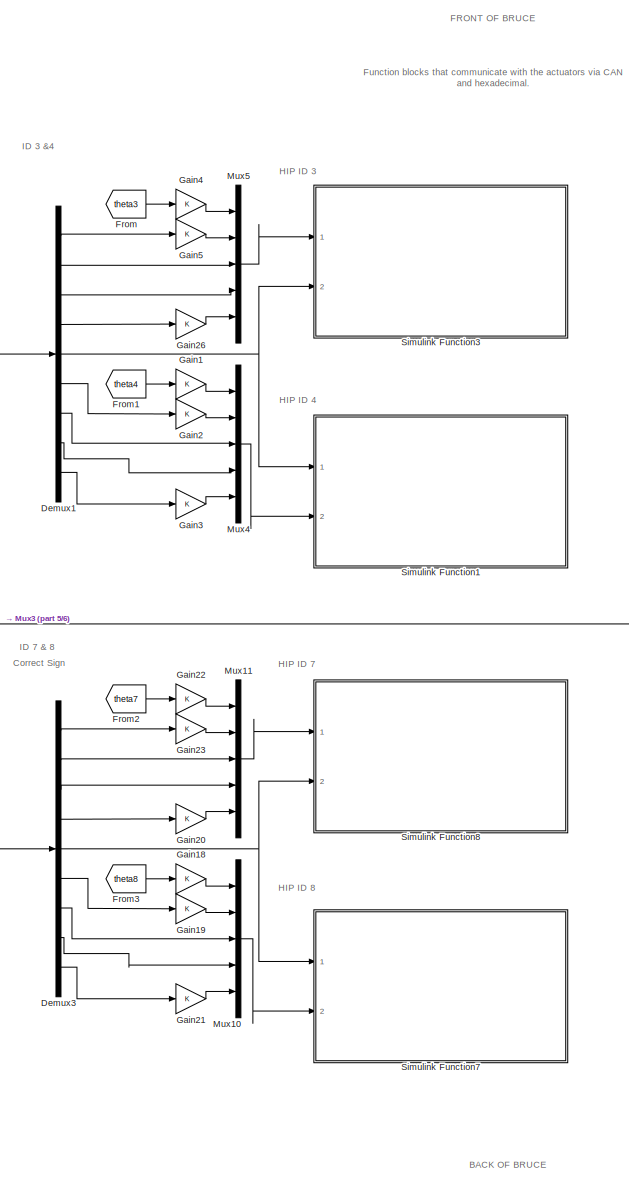
[diagram: root canvas - part 1/6, middle right region]
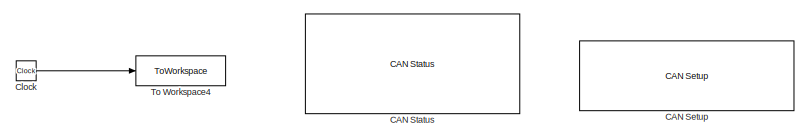
[diagram: root canvas - part 2/6, top center region]
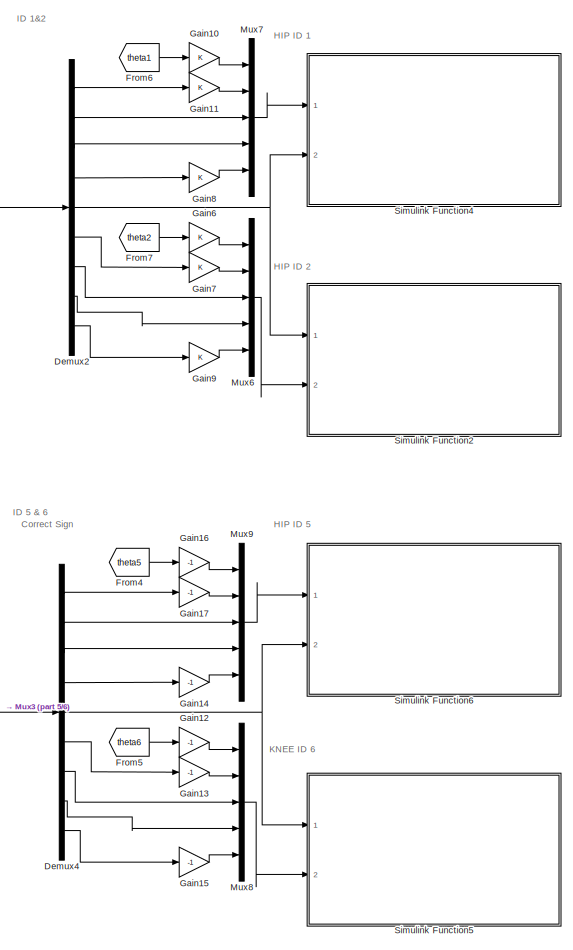
[diagram: root canvas - part 3/6, middle right region]
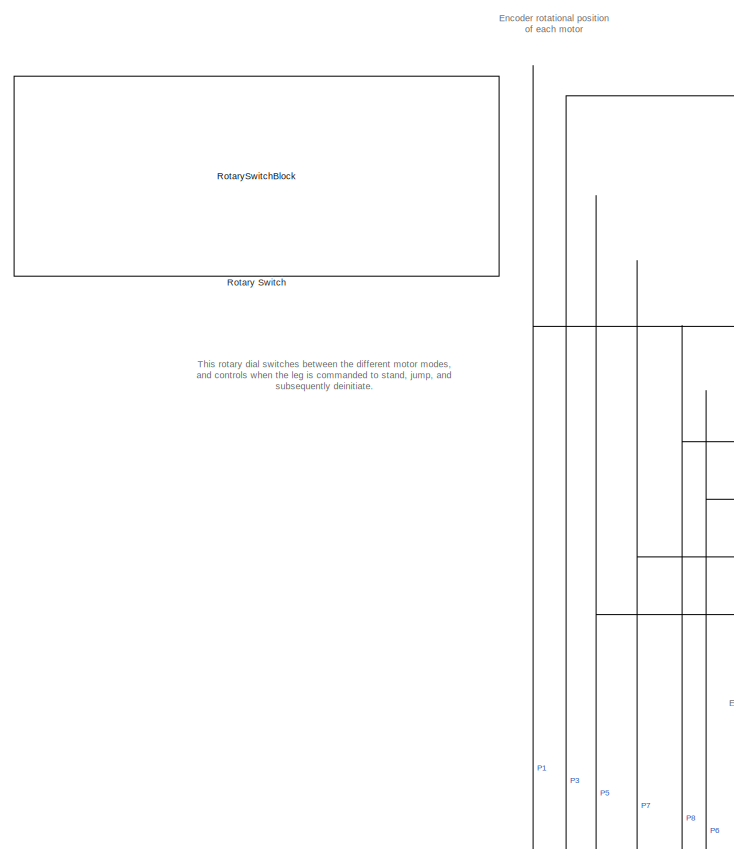
[diagram: root canvas - part 4/6, middle left region]
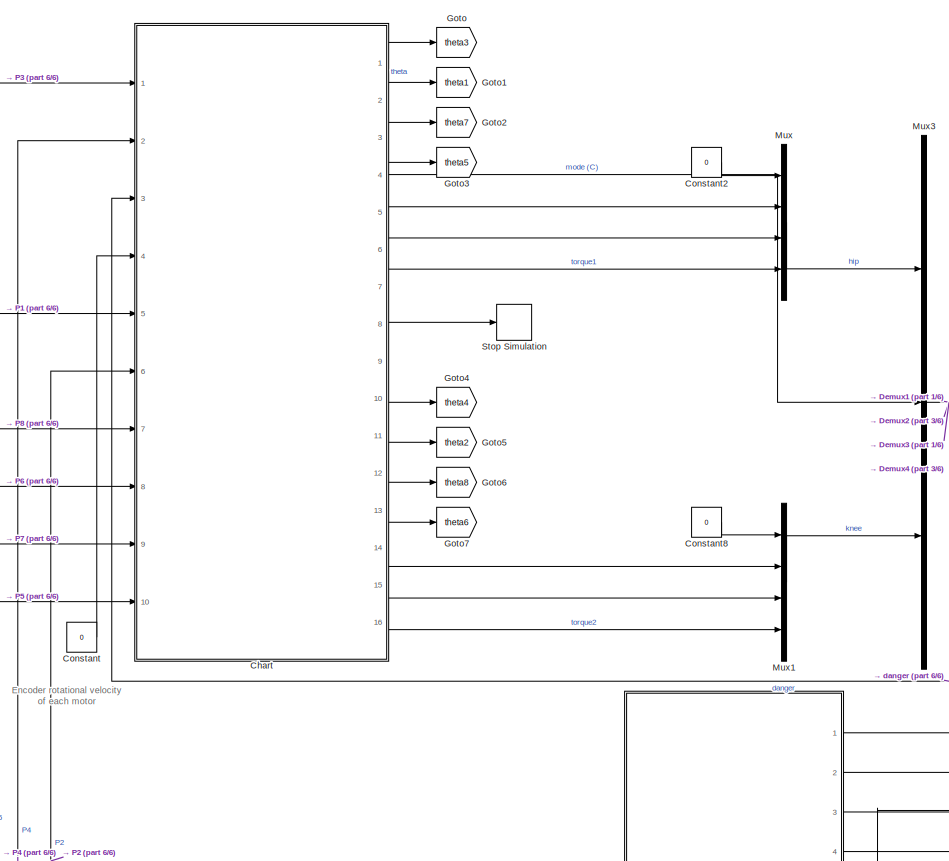
[diagram: root canvas - part 5/6, central region]
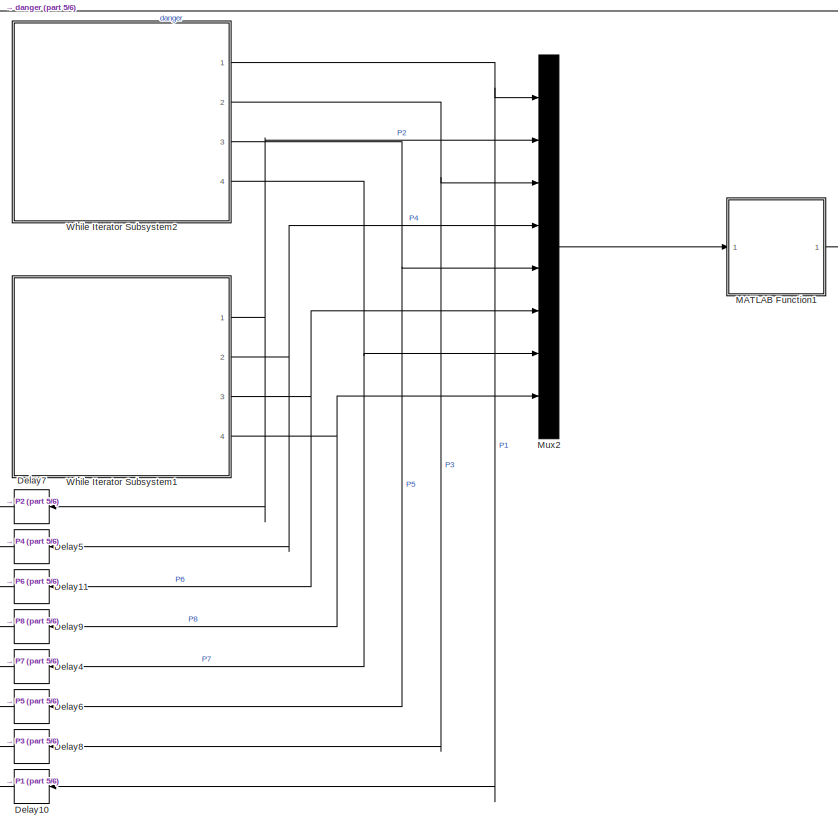
[diagram: root canvas - part 6/6, bottom center region]
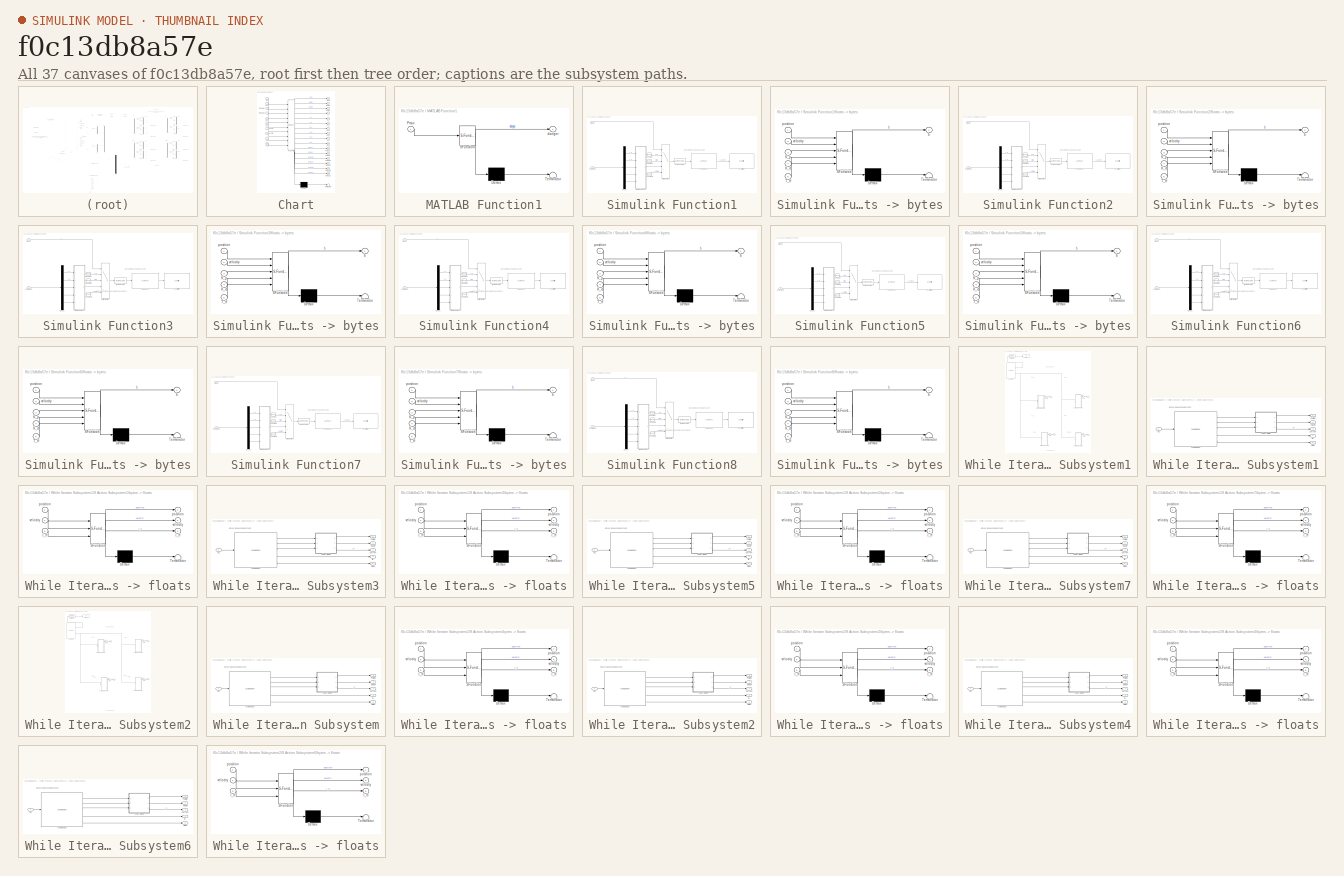
[diagram: thumbnail index - all 37 canvases of the model, root first then tree order]
MODEL slx_f0c13db8a57e
KIND model
CONFIG AbsTol = auto
CONFIG EnableMultiTasking = off
CONFIG FixedStep = 0.005
CONFIG MaxStep = auto
CONFIG MinStep = auto
CONFIG RelTol = 1e-3
CONFIG SampleTimeConstraint = Unconstrained
CONFIG SolverName = FixedStepAuto
CONFIG StartTime = 0.0
CONFIG StopTime = inf
BLOCK [Reference] CAN Setup   REF=speedgoatlib_IO691/CAN Setup 
  Ports = []
  SourceBlock = speedgoatlib_IO691/CAN Setup
  SourceProductName = Simulink Real-Time: Speedgoat I/O Blockset
  SourceType = setup_IO691
BLOCK [Reference] CAN Status  REF=speedgoatlib_IO691/CAN Status
  Ports = []
  SourceBlock = speedgoatlib_IO691/CAN Status
  SourceProductName = Simulink Real-Time: Speedgoat I/O Blockset
  SourceType = status_IO691
  UserDataPersistent = on
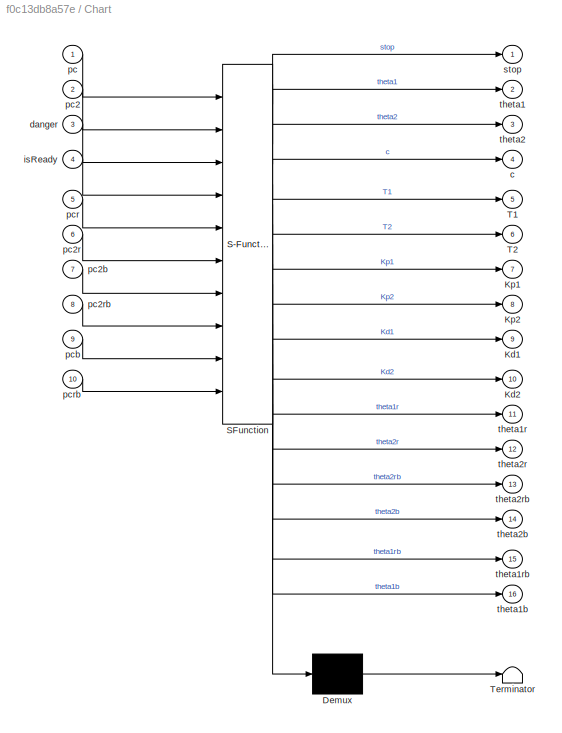
BLOCK [SubSystem] Chart
  ErrorFcn = Stateflow.Translate.translate
  PermitHierarchicalResolution = ExplicitOnly
  PortSchema = {"entries":[{"content":{"sides":[{"content":{"connectorIds":["In5","In1","In10","In9","In7","In8","In2","In6","In3","In4"]},"type":"ConnectorPlacement.EquallySpacedRectSide","uuid":"09499f21-f50c-4ce4-914e-8b9942bcc246"},{"content":{"connectorIds":["Out2","Out11","Out16","Out15","Out7","Out9","Out5","Out1","Out4","Out3","Out12","Out14","Out13","Out8","Out10","Out6"],"side":"RIGHT"},"type":"Connect...<+407ch>
  Ports = [10, 16]
  RequestExecContextInheritance = off
  SFBlockType = Chart
  TreatAsAtomicUnit = on
BLOCK [Demux] Chart/ Demux 
  Outputs = 1
  Ports = [1, 1]
BLOCK [S-Function] Chart/ SFunction 
  EnableBusSupport = on
  FunctionName = sf_sfun
  PortCounts = [10 17]
  Ports = [10, 17]
  SFcnIsStateOwnerBlock = off
  SFunctionDeploymentMode = off
  Tag = Stateflow S-Function 8
BLOCK [Terminator] Chart/ Terminator 
BLOCK [Outport] Chart/Kd1
  Port = 9
BLOCK [Outport] Chart/Kd2
  Port = 10
BLOCK [Outport] Chart/Kp1
  Port = 7
BLOCK [Outport] Chart/Kp2
  Port = 8
BLOCK [Outport] Chart/T1
  Port = 5
BLOCK [Outport] Chart/T2
  Port = 6
BLOCK [Outport] Chart/c
  Port = 4
BLOCK [Inport] Chart/danger
  Port = 3
BLOCK [Inport] Chart/isReady
  Port = 4
BLOCK [Inport] Chart/pc
BLOCK [Inport] Chart/pc2
  Port = 2
BLOCK [Inport] Chart/pc2b
  Port = 7
BLOCK [Inport] Chart/pc2r
  Port = 6
BLOCK [Inport] Chart/pc2rb
  Port = 8
BLOCK [Inport] Chart/pcb
  Port = 9
BLOCK [Inport] Chart/pcr
  Port = 5
BLOCK [Inport] Chart/pcrb
  Port = 10
BLOCK [Outport] Chart/stop
BLOCK [Outport] Chart/theta1
  Port = 2
BLOCK [Outport] Chart/theta1b
  Port = 16
BLOCK [Outport] Chart/theta1r
  Port = 11
BLOCK [Outport] Chart/theta1rb
  Port = 15
BLOCK [Outport] Chart/theta2
  Port = 3
BLOCK [Outport] Chart/theta2b
  Port = 14
BLOCK [Outport] Chart/theta2r
  Port = 12
BLOCK [Outport] Chart/theta2rb
  Port = 13
BLOCK [Clock] Clock
BLOCK [Constant] Constant
  Value = 0
BLOCK [Constant] Constant2
  Value = 0
BLOCK [Constant] Constant8
  Value = 0
BLOCK [Delay] Delay10
  DelayLength = 1
  InputPortMap = u0
  Ports = [1, 1]
BLOCK [Delay] Delay11
  DelayLength = 1
  InputPortMap = u0
  Ports = [1, 1]
BLOCK [Delay] Delay4
  DelayLength = 1
  InputPortMap = u0
  Ports = [1, 1]
BLOCK [Delay] Delay5
  DelayLength = 1
  InputPortMap = u0
  Ports = [1, 1]
BLOCK [Delay] Delay6
  DelayLength = 1
  InputPortMap = u0
  Ports = [1, 1]
BLOCK [Delay] Delay7
  DelayLength = 1
  InputPortMap = u0
  Ports = [1, 1]
BLOCK [Delay] Delay8
  DelayLength = 1
  InputPortMap = u0
  Ports = [1, 1]
BLOCK [Delay] Delay9
  DelayLength = 1
  InputPortMap = u0
  Ports = [1, 1]
BLOCK [Demux] Demux1
  Outputs = 9
  Ports = [1, 9]
BLOCK [Demux] Demux2
  Outputs = 9
  Ports = [1, 9]
BLOCK [Demux] Demux3
  Outputs = 9
  Ports = [1, 9]
BLOCK [Demux] Demux4
  Outputs = 9
  Ports = [1, 9]
BLOCK [From] From
  GotoTag = theta3
BLOCK [From] From1
  GotoTag = theta4
BLOCK [From] From2
  GotoTag = theta7
BLOCK [From] From3
  GotoTag = theta8
BLOCK [From] From4
  GotoTag = theta5
BLOCK [From] From5
  GotoTag = theta6
BLOCK [From] From6
  GotoTag = theta1
BLOCK [From] From7
  GotoTag = theta2
BLOCK [Gain] Gain1
BLOCK [Gain] Gain10
BLOCK [Gain] Gain11
BLOCK [Gain] Gain12
  Gain = -1
BLOCK [Gain] Gain13
  Gain = -1
BLOCK [Gain] Gain14
  Gain = -1
BLOCK [Gain] Gain15
  Gain = -1
BLOCK [Gain] Gain16
  Gain = -1
BLOCK [Gain] Gain17
  Gain = -1
BLOCK [Gain] Gain18
BLOCK [Gain] Gain19
BLOCK [Gain] Gain2
BLOCK [Gain] Gain20
BLOCK [Gain] Gain21
BLOCK [Gain] Gain22
BLOCK [Gain] Gain23
BLOCK [Gain] Gain26
BLOCK [Gain] Gain3
BLOCK [Gain] Gain4
BLOCK [Gain] Gain5
BLOCK [Gain] Gain6
BLOCK [Gain] Gain7
BLOCK [Gain] Gain8
BLOCK [Gain] Gain9
BLOCK [Goto] Goto
  GotoTag = theta3
BLOCK [Goto] Goto1
  GotoTag = theta1
BLOCK [Goto] Goto2
  GotoTag = theta7
BLOCK [Goto] Goto3
  GotoTag = theta5
BLOCK [Goto] Goto4
  GotoTag = theta4
BLOCK [Goto] Goto5
  GotoTag = theta2
BLOCK [Goto] Goto6
  GotoTag = theta8
BLOCK [Goto] Goto7
  GotoTag = theta6
BLOCK [SubSystem] MATLAB Function1
  ErrorFcn = Stateflow.Translate.translate
  PermitHierarchicalResolution = ExplicitOnly
  Ports = [1, 1]
  RequestExecContextInheritance = off
  SFBlockType = MATLAB Function
  TreatAsAtomicUnit = on
BLOCK [Demux] MATLAB Function1/ Demux 
  Outputs = 1
  Ports = [1, 1]
BLOCK [S-Function] MATLAB Function1/ SFunction 
  EnableBusSupport = on
  FunctionName = sf_sfun
  PortCounts = [1 2]
  Ports = [1, 2]
  SFcnIsStateOwnerBlock = off
  SFunctionDeploymentMode = off
  Tag = Stateflow S-Function 6
BLOCK [Terminator] MATLAB Function1/ Terminator 
BLOCK [Inport] MATLAB Function1/Pmux
BLOCK [Outport] MATLAB Function1/danger
BLOCK [Mux] Mux
  DisplayOption = bar
  Ports = [4, 1]
BLOCK [Mux] Mux1
  DisplayOption = bar
  Ports = [4, 1]
BLOCK [Mux] Mux10
  DisplayOption = bar
  Inputs = 5
  Ports = [5, 1]
BLOCK [Mux] Mux11
  DisplayOption = bar
  Inputs = 5
  Ports = [5, 1]
BLOCK [Mux] Mux2
  DisplayOption = bar
  Inputs = 8
  Ports = [8, 1]
BLOCK [Mux] Mux3
  DisplayOption = bar
  Inputs = 3
  Ports = [3, 1]
BLOCK [Mux] Mux4
  DisplayOption = bar
  Inputs = 5
  Ports = [5, 1]
BLOCK [Mux] Mux5
  DisplayOption = bar
  Inputs = 5
  Ports = [5, 1]
BLOCK [Mux] Mux6
  DisplayOption = bar
  Inputs = 5
  Ports = [5, 1]
BLOCK [Mux] Mux7
  DisplayOption = bar
  Inputs = 5
  Ports = [5, 1]
BLOCK [Mux] Mux8
  DisplayOption = bar
  Inputs = 5
  Ports = [5, 1]
BLOCK [Mux] Mux9
  DisplayOption = bar
  Inputs = 5
  Ports = [5, 1]
BLOCK [RotarySwitchBlock] Rotary Switch
BLOCK [SubSystem] Simulink Function1
  Ports = [2]
  RequestExecContextInheritance = off
  TreatAsAtomicUnit = on
BLOCK [Reference] Simulink Function1/Byte Packing  REF=slrealtimeutilitieslib/Byte Packing
  Ports = [1, 1]
  SourceBlock = slrealtimeutilitieslib/Byte Packing
  SourceProductBaseCode = XP
  SourceType = slrealtimebytepacking
BLOCK [Reference] Simulink Function1/CAN Pack1  REF=canmsglib/CAN Pack
  Ports = [1, 1]
  SourceBlock = canmsglib/CAN Pack
  SourceProductBaseCode = ME,XP,VN
  SourceType = CAN Pack
BLOCK [Reference] Simulink Function1/CAN Write1  REF=speedgoatlib_IO691/CAN Write
  Ports = [1]
  SourceBlock = speedgoatlib_IO691/CAN Write
  SourceProductName = Simulink Real-Time: Speedgoat I/O Blockset
  SourceType = write_IO691
BLOCK [Inport] Simulink Function1/Command
  Port = 2
BLOCK [Constant] Simulink Function1/Constant
  Value = [0xFF, 0xFF, 0xFF, 0xFF, 0xFF, 0xFF, 0xFF, 0xFE]
BLOCK [Constant] Simulink Function1/Constant1
  Value = [0xFF, 0xFF, 0xFF, 0xFF, 0xFF, 0xFF, 0xFF, 0xFC]
BLOCK [Constant] Simulink Function1/Constant2
  Value = [0xFF, 0xFF, 0xFF, 0xFF, 0xFF, 0xFF, 0xFF, 0xFD]
BLOCK [Demux] Simulink Function1/Demux
  Outputs = 5
  Ports = [1, 5]
BLOCK [Inport] Simulink Function1/Mode
BLOCK [MultiPortSwitch] Simulink Function1/Multiport Switch
  DiagnosticForDefault = None
  InputSameDT = off
  Inputs = 4
  Ports = [5, 1]
  SaturateOnIntegerOverflow = off
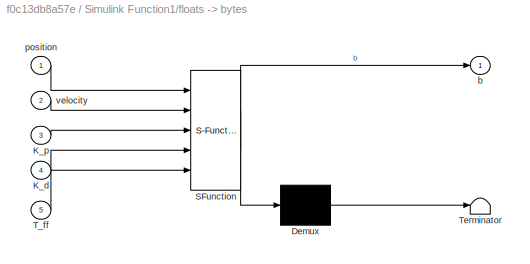
BLOCK [SubSystem] Simulink Function1/floats -> bytes
  ErrorFcn = Stateflow.Translate.translate
  PermitHierarchicalResolution = ExplicitOnly
  Ports = [5, 1]
  RequestExecContextInheritance = off
  SFBlockType = MATLAB Function
  TreatAsAtomicUnit = on
BLOCK [Demux] Simulink Function1/floats -> bytes/ Demux 
  Outputs = 1
  Ports = [1, 1]
BLOCK [S-Function] Simulink Function1/floats -> bytes/ SFunction 
  EnableBusSupport = on
  FunctionName = sf_sfun
  PortCounts = [5 2]
  Ports = [5, 2]
  SFcnIsStateOwnerBlock = off
  SFunctionDeploymentMode = off
  Tag = Stateflow S-Function 3
BLOCK [Terminator] Simulink Function1/floats -> bytes/ Terminator 
BLOCK [Inport] Simulink Function1/floats -> bytes/K_d
  Port = 4
BLOCK [Inport] Simulink Function1/floats -> bytes/K_p
  Port = 3
BLOCK [Inport] Simulink Function1/floats -> bytes/T_ff
  Port = 5
BLOCK [Outport] Simulink Function1/floats -> bytes/b
BLOCK [Inport] Simulink Function1/floats -> bytes/position
BLOCK [Inport] Simulink Function1/floats -> bytes/velocity
  Port = 2
BLOCK [SubSystem] Simulink Function2
  Ports = [2]
  RequestExecContextInheritance = off
  TreatAsAtomicUnit = on
BLOCK [Reference] Simulink Function2/Byte Packing  REF=slrealtimeutilitieslib/Byte Packing
  Ports = [1, 1]
  SourceBlock = slrealtimeutilitieslib/Byte Packing
  SourceProductBaseCode = XP
  SourceType = slrealtimebytepacking
BLOCK [Reference] Simulink Function2/CAN Pack1  REF=canmsglib/CAN Pack
  Ports = [1, 1]
  SourceBlock = canmsglib/CAN Pack
  SourceProductBaseCode = ME,XP,VN
  SourceType = CAN Pack
BLOCK [Reference] Simulink Function2/CAN Write1  REF=speedgoatlib_IO691/CAN Write
  Ports = [1]
  SourceBlock = speedgoatlib_IO691/CAN Write
  SourceProductName = Simulink Real-Time: Speedgoat I/O Blockset
  SourceType = write_IO691
BLOCK [Inport] Simulink Function2/Command
  Port = 2
BLOCK [Constant] Simulink Function2/Constant
  Value = [0xFF, 0xFF, 0xFF, 0xFF, 0xFF, 0xFF, 0xFF, 0xFE]
BLOCK [Constant] Simulink Function2/Constant1
  Value = [0xFF, 0xFF, 0xFF, 0xFF, 0xFF, 0xFF, 0xFF, 0xFC]
BLOCK [Constant] Simulink Function2/Constant2
  Value = [0xFF, 0xFF, 0xFF, 0xFF, 0xFF, 0xFF, 0xFF, 0xFD]
BLOCK [Demux] Simulink Function2/Demux
  Outputs = 5
  Ports = [1, 5]
BLOCK [Inport] Simulink Function2/Mode
BLOCK [MultiPortSwitch] Simulink Function2/Multiport Switch
  DiagnosticForDefault = None
  InputSameDT = off
  Inputs = 4
  Ports = [5, 1]
  SaturateOnIntegerOverflow = off
BLOCK [SubSystem] Simulink Function2/floats -> bytes
  ErrorFcn = Stateflow.Translate.translate
  PermitHierarchicalResolution = ExplicitOnly
  Ports = [5, 1]
  RequestExecContextInheritance = off
  SFBlockType = MATLAB Function
  TreatAsAtomicUnit = on
BLOCK [Demux] Simulink Function2/floats -> bytes/ Demux 
  Outputs = 1
  Ports = [1, 1]
BLOCK [S-Function] Simulink Function2/floats -> bytes/ SFunction 
  EnableBusSupport = on
  FunctionName = sf_sfun
  PortCounts = [5 2]
  Ports = [5, 2]
  SFcnIsStateOwnerBlock = off
  SFunctionDeploymentMode = off
  Tag = Stateflow S-Function 13
BLOCK [Terminator] Simulink Function2/floats -> bytes/ Terminator 
BLOCK [Inport] Simulink Function2/floats -> bytes/K_d
  Port = 4
BLOCK [Inport] Simulink Function2/floats -> bytes/K_p
  Port = 3
BLOCK [Inport] Simulink Function2/floats -> bytes/T_ff
  Port = 5
BLOCK [Outport] Simulink Function2/floats -> bytes/b
BLOCK [Inport] Simulink Function2/floats -> bytes/position
BLOCK [Inport] Simulink Function2/floats -> bytes/velocity
  Port = 2
BLOCK [SubSystem] Simulink Function3
  Ports = [2]
  RequestExecContextInheritance = off
  TreatAsAtomicUnit = on
BLOCK [Reference] Simulink Function3/Byte Packing  REF=slrealtimeutilitieslib/Byte Packing
  Ports = [1, 1]
  SourceBlock = slrealtimeutilitieslib/Byte Packing
  SourceProductBaseCode = XP
  SourceType = slrealtimebytepacking
BLOCK [Reference] Simulink Function3/CAN Pack1  REF=canmsglib/CAN Pack
  Ports = [1, 1]
  SourceBlock = canmsglib/CAN Pack
  SourceProductBaseCode = ME,XP,VN
  SourceType = CAN Pack
BLOCK [Reference] Simulink Function3/CAN Write1  REF=speedgoatlib_IO691/CAN Write
  Ports = [1]
  SourceBlock = speedgoatlib_IO691/CAN Write
  SourceProductName = Simulink Real-Time: Speedgoat I/O Blockset
  SourceType = write_IO691
BLOCK [Inport] Simulink Function3/Command
BLOCK [Constant] Simulink Function3/Constant
  Value = [0xFF, 0xFF, 0xFF, 0xFF, 0xFF, 0xFF, 0xFF, 0xFE]
BLOCK [Constant] Simulink Function3/Constant1
  Value = [0xFF, 0xFF, 0xFF, 0xFF, 0xFF, 0xFF, 0xFF, 0xFC]
BLOCK [Constant] Simulink Function3/Constant2
  Value = [0xFF, 0xFF, 0xFF, 0xFF, 0xFF, 0xFF, 0xFF, 0xFD]
BLOCK [Demux] Simulink Function3/Demux
  Outputs = 5
  Ports = [1, 5]
BLOCK [Inport] Simulink Function3/Mode
  Port = 2
BLOCK [MultiPortSwitch] Simulink Function3/Multiport Switch
  DiagnosticForDefault = None
  InputSameDT = off
  Inputs = 4
  Ports = [5, 1]
  SaturateOnIntegerOverflow = off
BLOCK [SubSystem] Simulink Function3/floats -> bytes
  ErrorFcn = Stateflow.Translate.translate
  PermitHierarchicalResolution = ExplicitOnly
  Ports = [5, 1]
  RequestExecContextInheritance = off
  SFBlockType = MATLAB Function
  TreatAsAtomicUnit = on
BLOCK [Demux] Simulink Function3/floats -> bytes/ Demux 
  Outputs = 1
  Ports = [1, 1]
BLOCK [S-Function] Simulink Function3/floats -> bytes/ SFunction 
  EnableBusSupport = on
  FunctionName = sf_sfun
  PortCounts = [5 2]
  Ports = [5, 2]
  SFcnIsStateOwnerBlock = off
  SFunctionDeploymentMode = off
  Tag = Stateflow S-Function 5
BLOCK [Terminator] Simulink Function3/floats -> bytes/ Terminator 
BLOCK [Inport] Simulink Function3/floats -> bytes/K_d
  Port = 4
BLOCK [Inport] Simulink Function3/floats -> bytes/K_p
  Port = 3
BLOCK [Inport] Simulink Function3/floats -> bytes/T_ff
  Port = 5
BLOCK [Outport] Simulink Function3/floats -> bytes/b
BLOCK [Inport] Simulink Function3/floats -> bytes/position
BLOCK [Inport] Simulink Function3/floats -> bytes/velocity
  Port = 2
BLOCK [SubSystem] Simulink Function4
  Ports = [2]
  RequestExecContextInheritance = off
  TreatAsAtomicUnit = on
BLOCK [Reference] Simulink Function4/Byte Packing  REF=slrealtimeutilitieslib/Byte Packing
  Ports = [1, 1]
  SourceBlock = slrealtimeutilitieslib/Byte Packing
  SourceProductBaseCode = XP
  SourceType = slrealtimebytepacking
BLOCK [Reference] Simulink Function4/CAN Pack1  REF=canmsglib/CAN Pack
  Ports = [1, 1]
  SourceBlock = canmsglib/CAN Pack
  SourceProductBaseCode = ME,XP,VN
  SourceType = CAN Pack
BLOCK [Reference] Simulink Function4/CAN Write1  REF=speedgoatlib_IO691/CAN Write
  Ports = [1]
  SourceBlock = speedgoatlib_IO691/CAN Write
  SourceProductName = Simulink Real-Time: Speedgoat I/O Blockset
  SourceType = write_IO691
BLOCK [Inport] Simulink Function4/Command
BLOCK [Constant] Simulink Function4/Constant
  Value = [0xFF, 0xFF, 0xFF, 0xFF, 0xFF, 0xFF, 0xFF, 0xFE]
BLOCK [Constant] Simulink Function4/Constant1
  Value = [0xFF, 0xFF, 0xFF, 0xFF, 0xFF, 0xFF, 0xFF, 0xFC]
BLOCK [Constant] Simulink Function4/Constant2
  Value = [0xFF, 0xFF, 0xFF, 0xFF, 0xFF, 0xFF, 0xFF, 0xFD]
BLOCK [Demux] Simulink Function4/Demux
  Outputs = 5
  Ports = [1, 5]
BLOCK [Inport] Simulink Function4/Mode
  Port = 2
BLOCK [MultiPortSwitch] Simulink Function4/Multiport Switch
  DiagnosticForDefault = None
  InputSameDT = off
  Inputs = 4
  Ports = [5, 1]
  SaturateOnIntegerOverflow = off
BLOCK [SubSystem] Simulink Function4/floats -> bytes
  ErrorFcn = Stateflow.Translate.translate
  PermitHierarchicalResolution = ExplicitOnly
  Ports = [5, 1]
  RequestExecContextInheritance = off
  SFBlockType = MATLAB Function
  TreatAsAtomicUnit = on
BLOCK [Demux] Simulink Function4/floats -> bytes/ Demux 
  Outputs = 1
  Ports = [1, 1]
BLOCK [S-Function] Simulink Function4/floats -> bytes/ SFunction 
  EnableBusSupport = on
  FunctionName = sf_sfun
  PortCounts = [5 2]
  Ports = [5, 2]
  SFcnIsStateOwnerBlock = off
  SFunctionDeploymentMode = off
  Tag = Stateflow S-Function 14
BLOCK [Terminator] Simulink Function4/floats -> bytes/ Terminator 
BLOCK [Inport] Simulink Function4/floats -> bytes/K_d
  Port = 4
BLOCK [Inport] Simulink Function4/floats -> bytes/K_p
  Port = 3
BLOCK [Inport] Simulink Function4/floats -> bytes/T_ff
  Port = 5
BLOCK [Outport] Simulink Function4/floats -> bytes/b
BLOCK [Inport] Simulink Function4/floats -> bytes/position
BLOCK [Inport] Simulink Function4/floats -> bytes/velocity
  Port = 2
BLOCK [SubSystem] Simulink Function5
  Ports = [2]
  RequestExecContextInheritance = off
  TreatAsAtomicUnit = on
BLOCK [Reference] Simulink Function5/Byte Packing  REF=slrealtimeutilitieslib/Byte Packing
  Ports = [1, 1]
  SourceBlock = slrealtimeutilitieslib/Byte Packing
  SourceProductBaseCode = XP
  SourceType = slrealtimebytepacking
BLOCK [Reference] Simulink Function5/CAN Pack1  REF=canmsglib/CAN Pack
  Ports = [1, 1]
  SourceBlock = canmsglib/CAN Pack
  SourceProductBaseCode = ME,XP,VN
  SourceType = CAN Pack
BLOCK [Reference] Simulink Function5/CAN Write1  REF=speedgoatlib_IO691/CAN Write
  Ports = [1]
  SourceBlock = speedgoatlib_IO691/CAN Write
  SourceProductName = Simulink Real-Time: Speedgoat I/O Blockset
  SourceType = write_IO691
BLOCK [Inport] Simulink Function5/Command
  Port = 2
BLOCK [Constant] Simulink Function5/Constant
  Value = [0xFF, 0xFF, 0xFF, 0xFF, 0xFF, 0xFF, 0xFF, 0xFE]
BLOCK [Constant] Simulink Function5/Constant1
  Value = [0xFF, 0xFF, 0xFF, 0xFF, 0xFF, 0xFF, 0xFF, 0xFC]
BLOCK [Constant] Simulink Function5/Constant2
  Value = [0xFF, 0xFF, 0xFF, 0xFF, 0xFF, 0xFF, 0xFF, 0xFD]
BLOCK [Demux] Simulink Function5/Demux
  Outputs = 5
  Ports = [1, 5]
BLOCK [Inport] Simulink Function5/Mode
BLOCK [MultiPortSwitch] Simulink Function5/Multiport Switch
  DiagnosticForDefault = None
  InputSameDT = off
  Inputs = 4
  Ports = [5, 1]
  SaturateOnIntegerOverflow = off
BLOCK [SubSystem] Simulink Function5/floats -> bytes
  ErrorFcn = Stateflow.Translate.translate
  PermitHierarchicalResolution = ExplicitOnly
  Ports = [5, 1]
  RequestExecContextInheritance = off
  SFBlockType = MATLAB Function
  TreatAsAtomicUnit = on
BLOCK [Demux] Simulink Function5/floats -> bytes/ Demux 
  Outputs = 1
  Ports = [1, 1]
BLOCK [S-Function] Simulink Function5/floats -> bytes/ SFunction 
  EnableBusSupport = on
  FunctionName = sf_sfun
  PortCounts = [5 2]
  Ports = [5, 2]
  SFcnIsStateOwnerBlock = off
  SFunctionDeploymentMode = off
  Tag = Stateflow S-Function 15
BLOCK [Terminator] Simulink Function5/floats -> bytes/ Terminator 
BLOCK [Inport] Simulink Function5/floats -> bytes/K_d
  Port = 4
BLOCK [Inport] Simulink Function5/floats -> bytes/K_p
  Port = 3
BLOCK [Inport] Simulink Function5/floats -> bytes/T_ff
  Port = 5
BLOCK [Outport] Simulink Function5/floats -> bytes/b
BLOCK [Inport] Simulink Function5/floats -> bytes/position
BLOCK [Inport] Simulink Function5/floats -> bytes/velocity
  Port = 2
BLOCK [SubSystem] Simulink Function6
  Ports = [2]
  RequestExecContextInheritance = off
  TreatAsAtomicUnit = on
BLOCK [Reference] Simulink Function6/Byte Packing  REF=slrealtimeutilitieslib/Byte Packing
  Ports = [1, 1]
  SourceBlock = slrealtimeutilitieslib/Byte Packing
  SourceProductBaseCode = XP
  SourceType = slrealtimebytepacking
BLOCK [Reference] Simulink Function6/CAN Pack1  REF=canmsglib/CAN Pack
  Ports = [1, 1]
  SourceBlock = canmsglib/CAN Pack
  SourceProductBaseCode = ME,XP,VN
  SourceType = CAN Pack
BLOCK [Reference] Simulink Function6/CAN Write1  REF=speedgoatlib_IO691/CAN Write
  Ports = [1]
  SourceBlock = speedgoatlib_IO691/CAN Write
  SourceProductName = Simulink Real-Time: Speedgoat I/O Blockset
  SourceType = write_IO691
BLOCK [Inport] Simulink Function6/Command
BLOCK [Constant] Simulink Function6/Constant
  Value = [0xFF, 0xFF, 0xFF, 0xFF, 0xFF, 0xFF, 0xFF, 0xFE]
BLOCK [Constant] Simulink Function6/Constant1
  Value = [0xFF, 0xFF, 0xFF, 0xFF, 0xFF, 0xFF, 0xFF, 0xFC]
BLOCK [Constant] Simulink Function6/Constant2
  Value = [0xFF, 0xFF, 0xFF, 0xFF, 0xFF, 0xFF, 0xFF, 0xFD]
BLOCK [Demux] Simulink Function6/Demux
  Outputs = 5
  Ports = [1, 5]
BLOCK [Inport] Simulink Function6/Mode
  Port = 2
BLOCK [MultiPortSwitch] Simulink Function6/Multiport Switch
  DiagnosticForDefault = None
  InputSameDT = off
  Inputs = 4
  Ports = [5, 1]
  SaturateOnIntegerOverflow = off
BLOCK [SubSystem] Simulink Function6/floats -> bytes
  ErrorFcn = Stateflow.Translate.translate
  PermitHierarchicalResolution = ExplicitOnly
  Ports = [5, 1]
  RequestExecContextInheritance = off
  SFBlockType = MATLAB Function
  TreatAsAtomicUnit = on
BLOCK [Demux] Simulink Function6/floats -> bytes/ Demux 
  Outputs = 1
  Ports = [1, 1]
BLOCK [S-Function] Simulink Function6/floats -> bytes/ SFunction 
  EnableBusSupport = on
  FunctionName = sf_sfun
  PortCounts = [5 2]
  Ports = [5, 2]
  SFcnIsStateOwnerBlock = off
  SFunctionDeploymentMode = off
  Tag = Stateflow S-Function 16
BLOCK [Terminator] Simulink Function6/floats -> bytes/ Terminator 
BLOCK [Inport] Simulink Function6/floats -> bytes/K_d
  Port = 4
BLOCK [Inport] Simulink Function6/floats -> bytes/K_p
  Port = 3
BLOCK [Inport] Simulink Function6/floats -> bytes/T_ff
  Port = 5
BLOCK [Outport] Simulink Function6/floats -> bytes/b
BLOCK [Inport] Simulink Function6/floats -> bytes/position
BLOCK [Inport] Simulink Function6/floats -> bytes/velocity
  Port = 2
BLOCK [SubSystem] Simulink Function7
  Ports = [2]
  RequestExecContextInheritance = off
  TreatAsAtomicUnit = on
BLOCK [Reference] Simulink Function7/Byte Packing  REF=slrealtimeutilitieslib/Byte Packing
  Ports = [1, 1]
  SourceBlock = slrealtimeutilitieslib/Byte Packing
  SourceProductBaseCode = XP
  SourceType = slrealtimebytepacking
BLOCK [Reference] Simulink Function7/CAN Pack1  REF=canmsglib/CAN Pack
  Ports = [1, 1]
  SourceBlock = canmsglib/CAN Pack
  SourceProductBaseCode = ME,XP,VN
  SourceType = CAN Pack
BLOCK [Reference] Simulink Function7/CAN Write1  REF=speedgoatlib_IO691/CAN Write
  Ports = [1]
  SourceBlock = speedgoatlib_IO691/CAN Write
  SourceProductName = Simulink Real-Time: Speedgoat I/O Blockset
  SourceType = write_IO691
BLOCK [Inport] Simulink Function7/Command
  Port = 2
BLOCK [Constant] Simulink Function7/Constant
  Value = [0xFF, 0xFF, 0xFF, 0xFF, 0xFF, 0xFF, 0xFF, 0xFE]
BLOCK [Constant] Simulink Function7/Constant1
  Value = [0xFF, 0xFF, 0xFF, 0xFF, 0xFF, 0xFF, 0xFF, 0xFC]
BLOCK [Constant] Simulink Function7/Constant2
  Value = [0xFF, 0xFF, 0xFF, 0xFF, 0xFF, 0xFF, 0xFF, 0xFD]
BLOCK [Demux] Simulink Function7/Demux
  Outputs = 5
  Ports = [1, 5]
BLOCK [Inport] Simulink Function7/Mode
BLOCK [MultiPortSwitch] Simulink Function7/Multiport Switch
  DiagnosticForDefault = None
  InputSameDT = off
  Inputs = 4
  Ports = [5, 1]
  SaturateOnIntegerOverflow = off
BLOCK [SubSystem] Simulink Function7/floats -> bytes
  ErrorFcn = Stateflow.Translate.translate
  PermitHierarchicalResolution = ExplicitOnly
  Ports = [5, 1]
  RequestExecContextInheritance = off
  SFBlockType = MATLAB Function
  TreatAsAtomicUnit = on
BLOCK [Demux] Simulink Function7/floats -> bytes/ Demux 
  Outputs = 1
  Ports = [1, 1]
BLOCK [S-Function] Simulink Function7/floats -> bytes/ SFunction 
  EnableBusSupport = on
  FunctionName = sf_sfun
  PortCounts = [5 2]
  Ports = [5, 2]
  SFcnIsStateOwnerBlock = off
  SFunctionDeploymentMode = off
  Tag = Stateflow S-Function 17
BLOCK [Terminator] Simulink Function7/floats -> bytes/ Terminator 
BLOCK [Inport] Simulink Function7/floats -> bytes/K_d
  Port = 4
BLOCK [Inport] Simulink Function7/floats -> bytes/K_p
  Port = 3
BLOCK [Inport] Simulink Function7/floats -> bytes/T_ff
  Port = 5
BLOCK [Outport] Simulink Function7/floats -> bytes/b
BLOCK [Inport] Simulink Function7/floats -> bytes/position
BLOCK [Inport] Simulink Function7/floats -> bytes/velocity
  Port = 2
BLOCK [SubSystem] Simulink Function8
  Ports = [2]
  RequestExecContextInheritance = off
  TreatAsAtomicUnit = on
BLOCK [Reference] Simulink Function8/Byte Packing  REF=slrealtimeutilitieslib/Byte Packing
  Ports = [1, 1]
  SourceBlock = slrealtimeutilitieslib/Byte Packing
  SourceProductBaseCode = XP
  SourceType = slrealtimebytepacking
BLOCK [Reference] Simulink Function8/CAN Pack1  REF=canmsglib/CAN Pack
  Ports = [1, 1]
  SourceBlock = canmsglib/CAN Pack
  SourceProductBaseCode = ME,XP,VN
  SourceType = CAN Pack
BLOCK [Reference] Simulink Function8/CAN Write1  REF=speedgoatlib_IO691/CAN Write
  Ports = [1]
  SourceBlock = speedgoatlib_IO691/CAN Write
  SourceProductName = Simulink Real-Time: Speedgoat I/O Blockset
  SourceType = write_IO691
BLOCK [Inport] Simulink Function8/Command
BLOCK [Constant] Simulink Function8/Constant
  Value = [0xFF, 0xFF, 0xFF, 0xFF, 0xFF, 0xFF, 0xFF, 0xFE]
BLOCK [Constant] Simulink Function8/Constant1
  Value = [0xFF, 0xFF, 0xFF, 0xFF, 0xFF, 0xFF, 0xFF, 0xFC]
BLOCK [Constant] Simulink Function8/Constant2
  Value = [0xFF, 0xFF, 0xFF, 0xFF, 0xFF, 0xFF, 0xFF, 0xFD]
BLOCK [Demux] Simulink Function8/Demux
  Outputs = 5
  Ports = [1, 5]
BLOCK [Inport] Simulink Function8/Mode
  Port = 2
BLOCK [MultiPortSwitch] Simulink Function8/Multiport Switch
  DiagnosticForDefault = None
  InputSameDT = off
  Inputs = 4
  Ports = [5, 1]
  SaturateOnIntegerOverflow = off
BLOCK [SubSystem] Simulink Function8/floats -> bytes
  ErrorFcn = Stateflow.Translate.translate
  PermitHierarchicalResolution = ExplicitOnly
  Ports = [5, 1]
  RequestExecContextInheritance = off
  SFBlockType = MATLAB Function
  TreatAsAtomicUnit = on
BLOCK [Demux] Simulink Function8/floats -> bytes/ Demux 
  Outputs = 1
  Ports = [1, 1]
BLOCK [S-Function] Simulink Function8/floats -> bytes/ SFunction 
  EnableBusSupport = on
  FunctionName = sf_sfun
  PortCounts = [5 2]
  Ports = [5, 2]
  SFcnIsStateOwnerBlock = off
  SFunctionDeploymentMode = off
  Tag = Stateflow S-Function 18
BLOCK [Terminator] Simulink Function8/floats -> bytes/ Terminator 
BLOCK [Inport] Simulink Function8/floats -> bytes/K_d
  Port = 4
BLOCK [Inport] Simulink Function8/floats -> bytes/K_p
  Port = 3
BLOCK [Inport] Simulink Function8/floats -> bytes/T_ff
  Port = 5
BLOCK [Outport] Simulink Function8/floats -> bytes/b
BLOCK [Inport] Simulink Function8/floats -> bytes/position
BLOCK [Inport] Simulink Function8/floats -> bytes/velocity
  Port = 2
BLOCK [Stop] Stop Simulation
BLOCK [ToWorkspace] To Workspace4
  FixptAsFi = on
  MaxDataPoints = inf
  Ports = [1]
  SampleTime = -1
  VariableName = timeout
BLOCK [SubSystem] While Iterator Subsystem1
  Ports = [0, 4]
  RequestExecContextInheritance = off
  TreatAsAtomicUnit = on
BLOCK [Reference] While Iterator Subsystem1/CAN Read  REF=speedgoatlib_IO691/CAN Read
  Ports = [0, 2]
  SourceBlock = speedgoatlib_IO691/CAN Read
  SourceProductName = Simulink Real-Time: Speedgoat I/O Blockset
  SourceType = read_IO691
BLOCK [Display] While Iterator Subsystem1/Display
  Decimation = 1
  Ports = [1]
BLOCK [Gain] While Iterator Subsystem1/Gain
BLOCK [Gain] While Iterator Subsystem1/Gain1
BLOCK [Gain] While Iterator Subsystem1/Gain2
  Gain = -1
BLOCK [Gain] While Iterator Subsystem1/Gain3
  Gain = -1
BLOCK [SubSystem] While Iterator Subsystem1/If Action Subsystem1
  Ports = [1, 5]
  RequestExecContextInheritance = off
  TreatAsAtomicUnit = on
BLOCK [Reference] While Iterator Subsystem1/If Action Subsystem1/CAN Unpack  REF=canmsglib/CAN Unpack
  Ports = [1, 5]
  SourceBlock = canmsglib/CAN Unpack
  SourceProductBaseCode = ME,XP,VN
  SourceType = CAN Unpack
BLOCK [Outport] While Iterator Subsystem1/If Action Subsystem1/Current
  Port = 3
BLOCK [Outport] While Iterator Subsystem1/If Action Subsystem1/ID
  Port = 4
BLOCK [Inport] While Iterator Subsystem1/If Action Subsystem1/In1
BLOCK [Outport] While Iterator Subsystem1/If Action Subsystem1/Position
BLOCK [Outport] While Iterator Subsystem1/If Action Subsystem1/Status
  Port = 5
BLOCK [Outport] While Iterator Subsystem1/If Action Subsystem1/Velocity
  Port = 2
BLOCK [SubSystem] While Iterator Subsystem1/If Action Subsystem1/bytes -> floats
  ErrorFcn = Stateflow.Translate.translate
  PermitHierarchicalResolution = ExplicitOnly
  Ports = [3, 3]
  RequestExecContextInheritance = off
  SFBlockType = MATLAB Function
  TreatAsAtomicUnit = on
BLOCK [Demux] While Iterator Subsystem1/If Action Subsystem1/bytes -> floats/ Demux 
  Outputs = 1
  Ports = [1, 1]
BLOCK [S-Function] While Iterator Subsystem1/If Action Subsystem1/bytes -> floats/ SFunction 
  EnableBusSupport = on
  FunctionName = sf_sfun
  PortCounts = [3 4]
  Ports = [3, 4]
  SFcnIsStateOwnerBlock = off
  SFunctionDeploymentMode = off
  Tag = Stateflow S-Function 20
BLOCK [Terminator] While Iterator Subsystem1/If Action Subsystem1/bytes -> floats/ Terminator 
BLOCK [Outport] While Iterator Subsystem1/If Action Subsystem1/bytes -> floats/I_ff
  Port = 3
BLOCK [Inport] While Iterator Subsystem1/If Action Subsystem1/bytes -> floats/I_ff 
  Port = 3
BLOCK [Outport] While Iterator Subsystem1/If Action Subsystem1/bytes -> floats/position
BLOCK [Inport] While Iterator Subsystem1/If Action Subsystem1/bytes -> floats/position 
BLOCK [Outport] While Iterator Subsystem1/If Action Subsystem1/bytes -> floats/velocity
  Port = 2
BLOCK [Inport] While Iterator Subsystem1/If Action Subsystem1/bytes -> floats/velocity 
  Port = 2
BLOCK [SubSystem] While Iterator Subsystem1/If Action Subsystem3
  Ports = [1, 5]
  RequestExecContextInheritance = off
  TreatAsAtomicUnit = on
BLOCK [Reference] While Iterator Subsystem1/If Action Subsystem3/CAN Unpack  REF=canmsglib/CAN Unpack
  Ports = [1, 5]
  SourceBlock = canmsglib/CAN Unpack
  SourceProductBaseCode = ME,XP,VN
  SourceType = CAN Unpack
BLOCK [Outport] While Iterator Subsystem1/If Action Subsystem3/Current
  Port = 3
BLOCK [Outport] While Iterator Subsystem1/If Action Subsystem3/ID
  Port = 4
BLOCK [Inport] While Iterator Subsystem1/If Action Subsystem3/In1
BLOCK [Outport] While Iterator Subsystem1/If Action Subsystem3/Position
BLOCK [Outport] While Iterator Subsystem1/If Action Subsystem3/Status
  Port = 5
BLOCK [Outport] While Iterator Subsystem1/If Action Subsystem3/Velocity
  Port = 2
BLOCK [SubSystem] While Iterator Subsystem1/If Action Subsystem3/bytes -> floats
  ErrorFcn = Stateflow.Translate.translate
  PermitHierarchicalResolution = ExplicitOnly
  Ports = [3, 3]
  RequestExecContextInheritance = off
  SFBlockType = MATLAB Function
  TreatAsAtomicUnit = on
BLOCK [Demux] While Iterator Subsystem1/If Action Subsystem3/bytes -> floats/ Demux 
  Outputs = 1
  Ports = [1, 1]
BLOCK [S-Function] While Iterator Subsystem1/If Action Subsystem3/bytes -> floats/ SFunction 
  EnableBusSupport = on
  FunctionName = sf_sfun
  PortCounts = [3 4]
  Ports = [3, 4]
  SFcnIsStateOwnerBlock = off
  SFunctionDeploymentMode = off
  Tag = Stateflow S-Function 22
BLOCK [Terminator] While Iterator Subsystem1/If Action Subsystem3/bytes -> floats/ Terminator 
BLOCK [Outport] While Iterator Subsystem1/If Action Subsystem3/bytes -> floats/I_ff
  Port = 3
BLOCK [Inport] While Iterator Subsystem1/If Action Subsystem3/bytes -> floats/I_ff 
  Port = 3
BLOCK [Outport] While Iterator Subsystem1/If Action Subsystem3/bytes -> floats/position
BLOCK [Inport] While Iterator Subsystem1/If Action Subsystem3/bytes -> floats/position 
BLOCK [Outport] While Iterator Subsystem1/If Action Subsystem3/bytes -> floats/velocity
  Port = 2
BLOCK [Inport] While Iterator Subsystem1/If Action Subsystem3/bytes -> floats/velocity 
  Port = 2
BLOCK [SubSystem] While Iterator Subsystem1/If Action Subsystem5
  Ports = [1, 5]
  RequestExecContextInheritance = off
  TreatAsAtomicUnit = on
BLOCK [Reference] While Iterator Subsystem1/If Action Subsystem5/CAN Unpack  REF=canmsglib/CAN Unpack
  Ports = [1, 5]
  SourceBlock = canmsglib/CAN Unpack
  SourceProductBaseCode = ME,XP,VN
  SourceType = CAN Unpack
BLOCK [Outport] While Iterator Subsystem1/If Action Subsystem5/Current
  Port = 3
BLOCK [Outport] While Iterator Subsystem1/If Action Subsystem5/ID
  Port = 4
BLOCK [Inport] While Iterator Subsystem1/If Action Subsystem5/In1
BLOCK [Outport] While Iterator Subsystem1/If Action Subsystem5/Position
BLOCK [Outport] While Iterator Subsystem1/If Action Subsystem5/Status
  Port = 5
BLOCK [Outport] While Iterator Subsystem1/If Action Subsystem5/Velocity
  Port = 2
BLOCK [SubSystem] While Iterator Subsystem1/If Action Subsystem5/bytes -> floats
  ErrorFcn = Stateflow.Translate.translate
  PermitHierarchicalResolution = ExplicitOnly
  Ports = [3, 3]
  RequestExecContextInheritance = off
  SFBlockType = MATLAB Function
  TreatAsAtomicUnit = on
BLOCK [Demux] While Iterator Subsystem1/If Action Subsystem5/bytes -> floats/ Demux 
  Outputs = 1
  Ports = [1, 1]
BLOCK [S-Function] While Iterator Subsystem1/If Action Subsystem5/bytes -> floats/ SFunction 
  EnableBusSupport = on
  FunctionName = sf_sfun
  PortCounts = [3 4]
  Ports = [3, 4]
  SFcnIsStateOwnerBlock = off
  SFunctionDeploymentMode = off
  Tag = Stateflow S-Function 24
BLOCK [Terminator] While Iterator Subsystem1/If Action Subsystem5/bytes -> floats/ Terminator 
BLOCK [Outport] While Iterator Subsystem1/If Action Subsystem5/bytes -> floats/I_ff
  Port = 3
BLOCK [Inport] While Iterator Subsystem1/If Action Subsystem5/bytes -> floats/I_ff 
  Port = 3
BLOCK [Outport] While Iterator Subsystem1/If Action Subsystem5/bytes -> floats/position
BLOCK [Inport] While Iterator Subsystem1/If Action Subsystem5/bytes -> floats/position 
BLOCK [Outport] While Iterator Subsystem1/If Action Subsystem5/bytes -> floats/velocity
  Port = 2
BLOCK [Inport] While Iterator Subsystem1/If Action Subsystem5/bytes -> floats/velocity 
  Port = 2
BLOCK [SubSystem] While Iterator Subsystem1/If Action Subsystem7
  Ports = [1, 5]
  RequestExecContextInheritance = off
  TreatAsAtomicUnit = on
BLOCK [Reference] While Iterator Subsystem1/If Action Subsystem7/CAN Unpack  REF=canmsglib/CAN Unpack
  Ports = [1, 5]
  SourceBlock = canmsglib/CAN Unpack
  SourceProductBaseCode = ME,XP,VN
  SourceType = CAN Unpack
BLOCK [Outport] While Iterator Subsystem1/If Action Subsystem7/Current
  Port = 3
BLOCK [Outport] While Iterator Subsystem1/If Action Subsystem7/ID
  Port = 4
BLOCK [Inport] While Iterator Subsystem1/If Action Subsystem7/In1
BLOCK [Outport] While Iterator Subsystem1/If Action Subsystem7/Position
BLOCK [Outport] While Iterator Subsystem1/If Action Subsystem7/Status
  Port = 5
BLOCK [Outport] While Iterator Subsystem1/If Action Subsystem7/Velocity
  Port = 2
BLOCK [SubSystem] While Iterator Subsystem1/If Action Subsystem7/bytes -> floats
  ErrorFcn = Stateflow.Translate.translate
  PermitHierarchicalResolution = ExplicitOnly
  Ports = [3, 3]
  RequestExecContextInheritance = off
  SFBlockType = MATLAB Function
  TreatAsAtomicUnit = on
BLOCK [Demux] While Iterator Subsystem1/If Action Subsystem7/bytes -> floats/ Demux 
  Outputs = 1
  Ports = [1, 1]
BLOCK [S-Function] While Iterator Subsystem1/If Action Subsystem7/bytes -> floats/ SFunction 
  EnableBusSupport = on
  FunctionName = sf_sfun
  PortCounts = [3 4]
  Ports = [3, 4]
  SFcnIsStateOwnerBlock = off
  SFunctionDeploymentMode = off
  Tag = Stateflow S-Function 26
BLOCK [Terminator] While Iterator Subsystem1/If Action Subsystem7/bytes -> floats/ Terminator 
BLOCK [Outport] While Iterator Subsystem1/If Action Subsystem7/bytes -> floats/I_ff
  Port = 3
BLOCK [Inport] While Iterator Subsystem1/If Action Subsystem7/bytes -> floats/I_ff 
  Port = 3
BLOCK [Outport] While Iterator Subsystem1/If Action Subsystem7/bytes -> floats/position
BLOCK [Inport] While Iterator Subsystem1/If Action Subsystem7/bytes -> floats/position 
BLOCK [Outport] While Iterator Subsystem1/If Action Subsystem7/bytes -> floats/velocity
  Port = 2
BLOCK [Inport] While Iterator Subsystem1/If Action Subsystem7/bytes -> floats/velocity 
  Port = 2
BLOCK [Outport] While Iterator Subsystem1/P2
BLOCK [Outport] While Iterator Subsystem1/P4
  Port = 2
BLOCK [Outport] While Iterator Subsystem1/P6
  Port = 3
BLOCK [Outport] While Iterator Subsystem1/P8
  Port = 4
BLOCK [WhileIterator] While Iterator Subsystem1/While Iterator
  MaxIters = -1
  Ports = [1, 1]
  ResetStates = reset
  ShowIterationPort = on
  WhileBlockType = do-while
BLOCK [SubSystem] While Iterator Subsystem2
  Ports = [0, 4]
  RequestExecContextInheritance = off
  TreatAsAtomicUnit = on
BLOCK [Reference] While Iterator Subsystem2/CAN Read  REF=speedgoatlib_IO691/CAN Read
  Ports = [0, 2]
  SourceBlock = speedgoatlib_IO691/CAN Read
  SourceProductName = Simulink Real-Time: Speedgoat I/O Blockset
  SourceType = read_IO691
BLOCK [Display] While Iterator Subsystem2/Display
  Decimation = 1
  Ports = [1]
BLOCK [Gain] While Iterator Subsystem2/Gain
BLOCK [Gain] While Iterator Subsystem2/Gain1
  Gain = -1
BLOCK [Gain] While Iterator Subsystem2/Gain2
  Gain = -1
BLOCK [Gain] While Iterator Subsystem2/Gain3
BLOCK [SubSystem] While Iterator Subsystem2/If Action Subsystem
  Ports = [1, 5]
  RequestExecContextInheritance = off
  TreatAsAtomicUnit = on
BLOCK [Reference] While Iterator Subsystem2/If Action Subsystem/CAN Unpack  REF=canmsglib/CAN Unpack
  Ports = [1, 5]
  SourceBlock = canmsglib/CAN Unpack
  SourceProductBaseCode = ME,XP,VN
  SourceType = CAN Unpack
BLOCK [Outport] While Iterator Subsystem2/If Action Subsystem/Current
  Port = 3
BLOCK [Outport] While Iterator Subsystem2/If Action Subsystem/ID
  Port = 4
BLOCK [Inport] While Iterator Subsystem2/If Action Subsystem/In1
BLOCK [Outport] While Iterator Subsystem2/If Action Subsystem/Position
BLOCK [Outport] While Iterator Subsystem2/If Action Subsystem/Status
  Port = 5
BLOCK [Outport] While Iterator Subsystem2/If Action Subsystem/Velocity
  Port = 2
BLOCK [SubSystem] While Iterator Subsystem2/If Action Subsystem/bytes -> floats
  ErrorFcn = Stateflow.Translate.translate
  PermitHierarchicalResolution = ExplicitOnly
  Ports = [3, 3]
  RequestExecContextInheritance = off
  SFBlockType = MATLAB Function
  TreatAsAtomicUnit = on
BLOCK [Demux] While Iterator Subsystem2/If Action Subsystem/bytes -> floats/ Demux 
  Outputs = 1
  Ports = [1, 1]
BLOCK [S-Function] While Iterator Subsystem2/If Action Subsystem/bytes -> floats/ SFunction 
  EnableBusSupport = on
  FunctionName = sf_sfun
  PortCounts = [3 4]
  Ports = [3, 4]
  SFcnIsStateOwnerBlock = off
  SFunctionDeploymentMode = off
  Tag = Stateflow S-Function 27
BLOCK [Terminator] While Iterator Subsystem2/If Action Subsystem/bytes -> floats/ Terminator 
BLOCK [Outport] While Iterator Subsystem2/If Action Subsystem/bytes -> floats/I_ff
  Port = 3
BLOCK [Inport] While Iterator Subsystem2/If Action Subsystem/bytes -> floats/I_ff 
  Port = 3
BLOCK [Outport] While Iterator Subsystem2/If Action Subsystem/bytes -> floats/position
BLOCK [Inport] While Iterator Subsystem2/If Action Subsystem/bytes -> floats/position 
BLOCK [Outport] While Iterator Subsystem2/If Action Subsystem/bytes -> floats/velocity
  Port = 2
BLOCK [Inport] While Iterator Subsystem2/If Action Subsystem/bytes -> floats/velocity 
  Port = 2
BLOCK [SubSystem] While Iterator Subsystem2/If Action Subsystem2
  Ports = [1, 5]
  RequestExecContextInheritance = off
  TreatAsAtomicUnit = on
BLOCK [Reference] While Iterator Subsystem2/If Action Subsystem2/CAN Unpack  REF=canmsglib/CAN Unpack
  Ports = [1, 5]
  SourceBlock = canmsglib/CAN Unpack
  SourceProductBaseCode = ME,XP,VN
  SourceType = CAN Unpack
BLOCK [Outport] While Iterator Subsystem2/If Action Subsystem2/Current
  Port = 3
BLOCK [Outport] While Iterator Subsystem2/If Action Subsystem2/ID
  Port = 4
BLOCK [Inport] While Iterator Subsystem2/If Action Subsystem2/In1
BLOCK [Outport] While Iterator Subsystem2/If Action Subsystem2/Position
BLOCK [Outport] While Iterator Subsystem2/If Action Subsystem2/Status
  Port = 5
BLOCK [Outport] While Iterator Subsystem2/If Action Subsystem2/Velocity
  Port = 2
BLOCK [SubSystem] While Iterator Subsystem2/If Action Subsystem2/bytes -> floats
  ErrorFcn = Stateflow.Translate.translate
  PermitHierarchicalResolution = ExplicitOnly
  Ports = [3, 3]
  RequestExecContextInheritance = off
  SFBlockType = MATLAB Function
  TreatAsAtomicUnit = on
BLOCK [Demux] While Iterator Subsystem2/If Action Subsystem2/bytes -> floats/ Demux 
  Outputs = 1
  Ports = [1, 1]
BLOCK [S-Function] While Iterator Subsystem2/If Action Subsystem2/bytes -> floats/ SFunction 
  EnableBusSupport = on
  FunctionName = sf_sfun
  PortCounts = [3 4]
  Ports = [3, 4]
  SFcnIsStateOwnerBlock = off
  SFunctionDeploymentMode = off
  Tag = Stateflow S-Function 29
BLOCK [Terminator] While Iterator Subsystem2/If Action Subsystem2/bytes -> floats/ Terminator 
BLOCK [Outport] While Iterator Subsystem2/If Action Subsystem2/bytes -> floats/I_ff
  Port = 3
BLOCK [Inport] While Iterator Subsystem2/If Action Subsystem2/bytes -> floats/I_ff 
  Port = 3
BLOCK [Outport] While Iterator Subsystem2/If Action Subsystem2/bytes -> floats/position
BLOCK [Inport] While Iterator Subsystem2/If Action Subsystem2/bytes -> floats/position 
BLOCK [Outport] While Iterator Subsystem2/If Action Subsystem2/bytes -> floats/velocity
  Port = 2
BLOCK [Inport] While Iterator Subsystem2/If Action Subsystem2/bytes -> floats/velocity 
  Port = 2
BLOCK [SubSystem] While Iterator Subsystem2/If Action Subsystem4
  Ports = [1, 5]
  RequestExecContextInheritance = off
  TreatAsAtomicUnit = on
BLOCK [Reference] While Iterator Subsystem2/If Action Subsystem4/CAN Unpack  REF=canmsglib/CAN Unpack
  Ports = [1, 5]
  SourceBlock = canmsglib/CAN Unpack
  SourceProductBaseCode = ME,XP,VN
  SourceType = CAN Unpack
BLOCK [Outport] While Iterator Subsystem2/If Action Subsystem4/Current
  Port = 3
BLOCK [Outport] While Iterator Subsystem2/If Action Subsystem4/ID
  Port = 4
BLOCK [Inport] While Iterator Subsystem2/If Action Subsystem4/In1
BLOCK [Outport] While Iterator Subsystem2/If Action Subsystem4/Position
BLOCK [Outport] While Iterator Subsystem2/If Action Subsystem4/Status
  Port = 5
BLOCK [Outport] While Iterator Subsystem2/If Action Subsystem4/Velocity
  Port = 2
BLOCK [SubSystem] While Iterator Subsystem2/If Action Subsystem4/bytes -> floats
  ErrorFcn = Stateflow.Translate.translate
  PermitHierarchicalResolution = ExplicitOnly
  Ports = [3, 3]
  RequestExecContextInheritance = off
  SFBlockType = MATLAB Function
  TreatAsAtomicUnit = on
BLOCK [Demux] While Iterator Subsystem2/If Action Subsystem4/bytes -> floats/ Demux 
  Outputs = 1
  Ports = [1, 1]
BLOCK [S-Function] While Iterator Subsystem2/If Action Subsystem4/bytes -> floats/ SFunction 
  EnableBusSupport = on
  FunctionName = sf_sfun
  PortCounts = [3 4]
  Ports = [3, 4]
  SFcnIsStateOwnerBlock = off
  SFunctionDeploymentMode = off
  Tag = Stateflow S-Function 31
BLOCK [Terminator] While Iterator Subsystem2/If Action Subsystem4/bytes -> floats/ Terminator 
BLOCK [Outport] While Iterator Subsystem2/If Action Subsystem4/bytes -> floats/I_ff
  Port = 3
BLOCK [Inport] While Iterator Subsystem2/If Action Subsystem4/bytes -> floats/I_ff 
  Port = 3
BLOCK [Outport] While Iterator Subsystem2/If Action Subsystem4/bytes -> floats/position
BLOCK [Inport] While Iterator Subsystem2/If Action Subsystem4/bytes -> floats/position 
BLOCK [Outport] While Iterator Subsystem2/If Action Subsystem4/bytes -> floats/velocity
  Port = 2
BLOCK [Inport] While Iterator Subsystem2/If Action Subsystem4/bytes -> floats/velocity 
  Port = 2
BLOCK [SubSystem] While Iterator Subsystem2/If Action Subsystem6
  Ports = [1, 5]
  RequestExecContextInheritance = off
  TreatAsAtomicUnit = on
BLOCK [Reference] While Iterator Subsystem2/If Action Subsystem6/CAN Unpack  REF=canmsglib/CAN Unpack
  Ports = [1, 5]
  SourceBlock = canmsglib/CAN Unpack
  SourceProductBaseCode = ME,XP,VN
  SourceType = CAN Unpack
BLOCK [Outport] While Iterator Subsystem2/If Action Subsystem6/Current
  Port = 3
BLOCK [Outport] While Iterator Subsystem2/If Action Subsystem6/ID
  Port = 4
BLOCK [Inport] While Iterator Subsystem2/If Action Subsystem6/In1
BLOCK [Outport] While Iterator Subsystem2/If Action Subsystem6/Position
BLOCK [Outport] While Iterator Subsystem2/If Action Subsystem6/Status
  Port = 5
BLOCK [Outport] While Iterator Subsystem2/If Action Subsystem6/Velocity
  Port = 2
BLOCK [SubSystem] While Iterator Subsystem2/If Action Subsystem6/bytes -> floats
  ErrorFcn = Stateflow.Translate.translate
  PermitHierarchicalResolution = ExplicitOnly
  Ports = [3, 3]
  RequestExecContextInheritance = off
  SFBlockType = MATLAB Function
  TreatAsAtomicUnit = on
BLOCK [Demux] While Iterator Subsystem2/If Action Subsystem6/bytes -> floats/ Demux 
  Outputs = 1
  Ports = [1, 1]
BLOCK [S-Function] While Iterator Subsystem2/If Action Subsystem6/bytes -> floats/ SFunction 
  EnableBusSupport = on
  FunctionName = sf_sfun
  PortCounts = [3 4]
  Ports = [3, 4]
  SFcnIsStateOwnerBlock = off
  SFunctionDeploymentMode = off
  Tag = Stateflow S-Function 33
BLOCK [Terminator] While Iterator Subsystem2/If Action Subsystem6/bytes -> floats/ Terminator 
BLOCK [Outport] While Iterator Subsystem2/If Action Subsystem6/bytes -> floats/I_ff
  Port = 3
BLOCK [Inport] While Iterator Subsystem2/If Action Subsystem6/bytes -> floats/I_ff 
  Port = 3
BLOCK [Outport] While Iterator Subsystem2/If Action Subsystem6/bytes -> floats/position
BLOCK [Inport] While Iterator Subsystem2/If Action Subsystem6/bytes -> floats/position 
BLOCK [Outport] While Iterator Subsystem2/If Action Subsystem6/bytes -> floats/velocity
  Port = 2
BLOCK [Inport] While Iterator Subsystem2/If Action Subsystem6/bytes -> floats/velocity 
  Port = 2
BLOCK [Outport] While Iterator Subsystem2/P1
BLOCK [Outport] While Iterator Subsystem2/P3
  Port = 2
BLOCK [Outport] While Iterator Subsystem2/P5
  Port = 3
BLOCK [Outport] While Iterator Subsystem2/P7
  Port = 4
BLOCK [WhileIterator] While Iterator Subsystem2/While Iterator
  MaxIters = -1
  Ports = [1, 1]
  ResetStates = reset
  ShowIterationPort = on
  WhileBlockType = do-while
ANNOTATION (root): BACK OF BRUCE
ANNOTATION (root): FRONT OF BRUCE
ANNOTATION (root): Correct Sign
ANNOTATION (root): Encoder rotational position of each motor
ANNOTATION (root): Encoder rotational velocity of each motor
ANNOTATION (root): Function blocks that communicate with the actuators via CAN and hexadecimal.
ANNOTATION (root): HIP ID 1
ANNOTATION (root): HIP ID 2
ANNOTATION (root): HIP ID 3
ANNOTATION (root): HIP ID 4
ANNOTATION (root): HIP ID 5
ANNOTATION (root): HIP ID 7
ANNOTATION (root): HIP ID 8
ANNOTATION (root): ID 1&2
ANNOTATION (root): ID 3 &4
ANNOTATION (root): ID 5 & 6
ANNOTATION (root): ID 7 & 8
ANNOTATION (root): KNEE ID 6
ANNOTATION (root): This rotary dial switches between the different motor modes, and controls when the leg is commanded to stand, jump, and subsequently deinitiate.
ANNOTATION Simulink Function1: Standard ID Needs to Match Can ID
ANNOTATION Simulink Function2: Standard ID Needs to Match Can ID
ANNOTATION Simulink Function3: Converts inputted data to an 8-bit unsigned integer
ANNOTATION Simulink Function3: Standard ID Needs to Match Can ID
ANNOTATION Simulink Function4: Converts inputted data to an 8-bit unsigned integer
ANNOTATION Simulink Function4: Standard ID Needs to Match Can ID
ANNOTATION Simulink Function5: Standard ID Needs to Match Can ID
ANNOTATION Simulink Function6: Converts inputted data to an 8-bit unsigned integer
ANNOTATION Simulink Function6: Standard ID Needs to Match Can ID
ANNOTATION Simulink Function7: Standard ID Needs to Match Can ID
ANNOTATION Simulink Function8: Converts inputted data to an 8-bit unsigned integer
ANNOTATION Simulink Function8: Standard ID Needs to Match Can ID
ANNOTATION While Iterator Subsystem1: BACK OF BRUCE
ANNOTATION While Iterator Subsystem1: FRONT OF BRUCE
ANNOTATION While Iterator Subsystem1: HIP ID 8
ANNOTATION While Iterator Subsystem1: ID 1&2
ANNOTATION While Iterator Subsystem1: ID 3 &4
ANNOTATION While Iterator Subsystem1: ID 5 & 6
ANNOTATION While Iterator Subsystem1: ID 7 & 8
ANNOTATION While Iterator Subsystem1: KNEE ID 6
ANNOTATION While Iterator Subsystem1/If Action Subsystem1: Standard ID Needs to Match Can ID
ANNOTATION While Iterator Subsystem1/If Action Subsystem3: Standard ID Needs to Match Can ID
ANNOTATION While Iterator Subsystem1/If Action Subsystem5: Standard ID Needs to Match Can ID
ANNOTATION While Iterator Subsystem1/If Action Subsystem7: Standard ID Needs to Match Can ID
ANNOTATION While Iterator Subsystem2: BACK OF BRUCE
ANNOTATION While Iterator Subsystem2: FRONT OF BRUCE
ANNOTATION While Iterator Subsystem2: HIP ID 5
ANNOTATION While Iterator Subsystem2: HIP ID 7
ANNOTATION While Iterator Subsystem2: ID 1&2
ANNOTATION While Iterator Subsystem2: ID 3 &4
ANNOTATION While Iterator Subsystem2: ID 5 & 6
ANNOTATION While Iterator Subsystem2: ID 7 & 8
ANNOTATION While Iterator Subsystem2/If Action Subsystem: Standard ID Needs to Match Can ID
ANNOTATION While Iterator Subsystem2/If Action Subsystem2: Standard ID Needs to Match Can ID
ANNOTATION While Iterator Subsystem2/If Action Subsystem4: Standard ID Needs to Match Can ID
ANNOTATION While Iterator Subsystem2/If Action Subsystem6: Standard ID Needs to Match Can ID
LINE Chart:1 -> Stop Simulation:1
LINE Chart:10 -> Mux1:3
LINE Chart:11 -> Goto1:1
LINE Chart:12 -> Goto5:1
LINE Chart:13 -> Goto7:1
LINE Chart:14 -> Goto6:1
LINE Chart:15 -> Goto3:1
LINE Chart:16 -> Goto2:1
LINE Chart:2 -> Goto:1
LINE Chart:3 -> Goto4:1
LINE Chart:4 -> Mux3:2
LINE Chart:5 -> Mux:4
LINE Chart:6 -> Mux1:4
LINE Chart:7 -> Mux:2
LINE Chart:8 -> Mux1:2
LINE Chart:9 -> Mux:3
LINE Clock:1 -> To Workspace4:1
LINE Constant2:1 -> Mux:1
LINE Constant8:1 -> Mux1:1
LINE Constant:1 -> Chart:4
LINE Delay10:1 -> Chart:5
LINE Delay11:1 -> Chart:8
LINE Delay4:1 -> Chart:9
LINE Delay5:1 -> Chart:2
LINE Delay6:1 -> Chart:10
LINE Delay7:1 -> Chart:6
LINE Delay8:1 -> Chart:1
LINE Delay9:1 -> Chart:7
LINE Demux1:1 -> Gain5:1
LINE Demux1:2 -> Mux5:3
LINE Demux1:3 -> Mux5:4
LINE Demux1:4 -> Gain26:1
NET Demux1:5 -> Simulink Function1:1, Simulink Function3:2
LINE Demux1:6 -> Gain2:1
LINE Demux1:7 -> Mux4:3
LINE Demux1:8 -> Mux4:4
LINE Demux1:9 -> Gain3:1
LINE Demux2:1 -> Gain11:1
LINE Demux2:2 -> Mux7:3
LINE Demux2:3 -> Mux7:4
LINE Demux2:4 -> Gain8:1
NET Demux2:5 -> Simulink Function2:1, Simulink Function4:2
LINE Demux2:6 -> Gain7:1
LINE Demux2:7 -> Mux6:3
LINE Demux2:8 -> Mux6:4
LINE Demux2:9 -> Gain9:1
LINE Demux3:1 -> Gain23:1
LINE Demux3:2 -> Mux11:3
LINE Demux3:3 -> Mux11:4
LINE Demux3:4 -> Gain20:1
NET Demux3:5 -> Simulink Function7:1, Simulink Function8:2
LINE Demux3:6 -> Gain19:1
LINE Demux3:7 -> Mux10:3
LINE Demux3:8 -> Mux10:4
LINE Demux3:9 -> Gain21:1
LINE Demux4:1 -> Gain17:1
LINE Demux4:2 -> Mux9:3
LINE Demux4:3 -> Mux9:4
LINE Demux4:4 -> Gain14:1
NET Demux4:5 -> Simulink Function5:1, Simulink Function6:2
LINE Demux4:6 -> Gain13:1
LINE Demux4:7 -> Mux8:3
LINE Demux4:8 -> Mux8:4
LINE Demux4:9 -> Gain15:1
LINE From1:1 -> Gain1:1
LINE From2:1 -> Gain22:1
LINE From3:1 -> Gain18:1
LINE From4:1 -> Gain16:1
LINE From5:1 -> Gain12:1
LINE From6:1 -> Gain10:1
LINE From7:1 -> Gain6:1
LINE From:1 -> Gain4:1
LINE Gain10:1 -> Mux7:1
LINE Gain11:1 -> Mux7:2
LINE Gain12:1 -> Mux8:1
LINE Gain13:1 -> Mux8:2
LINE Gain14:1 -> Mux9:5
LINE Gain15:1 -> Mux8:5
LINE Gain16:1 -> Mux9:1
LINE Gain17:1 -> Mux9:2
LINE Gain18:1 -> Mux10:1
LINE Gain19:1 -> Mux10:2
LINE Gain1:1 -> Mux4:1
LINE Gain20:1 -> Mux11:5
LINE Gain21:1 -> Mux10:5
LINE Gain22:1 -> Mux11:1
LINE Gain23:1 -> Mux11:2
LINE Gain26:1 -> Mux5:5
LINE Gain2:1 -> Mux4:2
LINE Gain3:1 -> Mux4:5
LINE Gain4:1 -> Mux5:1
LINE Gain5:1 -> Mux5:2
LINE Gain6:1 -> Mux6:1
LINE Gain7:1 -> Mux6:2
LINE Gain8:1 -> Mux7:5
LINE Gain9:1 -> Mux6:5
LINE MATLAB Function1:1 -> Chart:3
LINE Mux10:1 -> Simulink Function7:2
LINE Mux11:1 -> Simulink Function8:1
LINE Mux1:1 -> Mux3:3
LINE Mux2:1 -> MATLAB Function1:1
NET Mux3:1 -> Demux1:1, Demux2:1, Demux3:1, Demux4:1
LINE Mux4:1 -> Simulink Function1:2
LINE Mux5:1 -> Simulink Function3:1
LINE Mux6:1 -> Simulink Function2:2
LINE Mux7:1 -> Simulink Function4:1
LINE Mux8:1 -> Simulink Function5:2
LINE Mux9:1 -> Simulink Function6:1
LINE Mux:1 -> Mux3:1
LINE Simulink Function1/Byte Packing:1 -> Simulink Function1/CAN Pack1:1
LINE Simulink Function1/CAN Pack1:1 -> Simulink Function1/CAN Write1:1
LINE Simulink Function1/Command:1 -> Simulink Function1/Demux:1
LINE Simulink Function1/Constant1:1 -> Simulink Function1/Multiport Switch:3
LINE Simulink Function1/Constant2:1 -> Simulink Function1/Multiport Switch:5
LINE Simulink Function1/Constant:1 -> Simulink Function1/Multiport Switch:2
LINE Simulink Function1/Demux:1 -> Simulink Function1/floats -> bytes:1
LINE Simulink Function1/Demux:2 -> Simulink Function1/floats -> bytes:2
LINE Simulink Function1/Demux:3 -> Simulink Function1/floats -> bytes:3
LINE Simulink Function1/Demux:4 -> Simulink Function1/floats -> bytes:4
LINE Simulink Function1/Demux:5 -> Simulink Function1/floats -> bytes:5
LINE Simulink Function1/Mode:1 -> Simulink Function1/Multiport Switch:1
LINE Simulink Function1/Multiport Switch:1 -> Simulink Function1/Byte Packing:1
LINE Simulink Function1/floats -> bytes:1 -> Simulink Function1/Multiport Switch:4
LINE Simulink Function2/Byte Packing:1 -> Simulink Function2/CAN Pack1:1
LINE Simulink Function2/CAN Pack1:1 -> Simulink Function2/CAN Write1:1
LINE Simulink Function2/Command:1 -> Simulink Function2/Demux:1
LINE Simulink Function2/Constant1:1 -> Simulink Function2/Multiport Switch:3
LINE Simulink Function2/Constant2:1 -> Simulink Function2/Multiport Switch:5
LINE Simulink Function2/Constant:1 -> Simulink Function2/Multiport Switch:2
LINE Simulink Function2/Demux:1 -> Simulink Function2/floats -> bytes:1
LINE Simulink Function2/Demux:2 -> Simulink Function2/floats -> bytes:2
LINE Simulink Function2/Demux:3 -> Simulink Function2/floats -> bytes:3
LINE Simulink Function2/Demux:4 -> Simulink Function2/floats -> bytes:4
LINE Simulink Function2/Demux:5 -> Simulink Function2/floats -> bytes:5
LINE Simulink Function2/Mode:1 -> Simulink Function2/Multiport Switch:1
LINE Simulink Function2/Multiport Switch:1 -> Simulink Function2/Byte Packing:1
LINE Simulink Function2/floats -> bytes:1 -> Simulink Function2/Multiport Switch:4
LINE Simulink Function3/Byte Packing:1 -> Simulink Function3/CAN Pack1:1
LINE Simulink Function3/CAN Pack1:1 -> Simulink Function3/CAN Write1:1
LINE Simulink Function3/Command:1 -> Simulink Function3/Demux:1
LINE Simulink Function3/Constant1:1 -> Simulink Function3/Multiport Switch:3
LINE Simulink Function3/Constant2:1 -> Simulink Function3/Multiport Switch:5
LINE Simulink Function3/Constant:1 -> Simulink Function3/Multiport Switch:2
LINE Simulink Function3/Demux:1 -> Simulink Function3/floats -> bytes:1
LINE Simulink Function3/Demux:2 -> Simulink Function3/floats -> bytes:2
LINE Simulink Function3/Demux:3 -> Simulink Function3/floats -> bytes:3
LINE Simulink Function3/Demux:4 -> Simulink Function3/floats -> bytes:4
LINE Simulink Function3/Demux:5 -> Simulink Function3/floats -> bytes:5
LINE Simulink Function3/Mode:1 -> Simulink Function3/Multiport Switch:1
LINE Simulink Function3/Multiport Switch:1 -> Simulink Function3/Byte Packing:1
LINE Simulink Function3/floats -> bytes:1 -> Simulink Function3/Multiport Switch:4
LINE Simulink Function4/Byte Packing:1 -> Simulink Function4/CAN Pack1:1
LINE Simulink Function4/CAN Pack1:1 -> Simulink Function4/CAN Write1:1
LINE Simulink Function4/Command:1 -> Simulink Function4/Demux:1
LINE Simulink Function4/Constant1:1 -> Simulink Function4/Multiport Switch:3
LINE Simulink Function4/Constant2:1 -> Simulink Function4/Multiport Switch:5
LINE Simulink Function4/Constant:1 -> Simulink Function4/Multiport Switch:2
LINE Simulink Function4/Demux:1 -> Simulink Function4/floats -> bytes:1
LINE Simulink Function4/Demux:2 -> Simulink Function4/floats -> bytes:2
LINE Simulink Function4/Demux:3 -> Simulink Function4/floats -> bytes:3
LINE Simulink Function4/Demux:4 -> Simulink Function4/floats -> bytes:4
LINE Simulink Function4/Demux:5 -> Simulink Function4/floats -> bytes:5
LINE Simulink Function4/Mode:1 -> Simulink Function4/Multiport Switch:1
LINE Simulink Function4/Multiport Switch:1 -> Simulink Function4/Byte Packing:1
LINE Simulink Function4/floats -> bytes:1 -> Simulink Function4/Multiport Switch:4
LINE Simulink Function5/Byte Packing:1 -> Simulink Function5/CAN Pack1:1
LINE Simulink Function5/CAN Pack1:1 -> Simulink Function5/CAN Write1:1
LINE Simulink Function5/Command:1 -> Simulink Function5/Demux:1
LINE Simulink Function5/Constant1:1 -> Simulink Function5/Multiport Switch:3
LINE Simulink Function5/Constant2:1 -> Simulink Function5/Multiport Switch:5
LINE Simulink Function5/Constant:1 -> Simulink Function5/Multiport Switch:2
LINE Simulink Function5/Demux:1 -> Simulink Function5/floats -> bytes:1
LINE Simulink Function5/Demux:2 -> Simulink Function5/floats -> bytes:2
LINE Simulink Function5/Demux:3 -> Simulink Function5/floats -> bytes:3
LINE Simulink Function5/Demux:4 -> Simulink Function5/floats -> bytes:4
LINE Simulink Function5/Demux:5 -> Simulink Function5/floats -> bytes:5
LINE Simulink Function5/Mode:1 -> Simulink Function5/Multiport Switch:1
LINE Simulink Function5/Multiport Switch:1 -> Simulink Function5/Byte Packing:1
LINE Simulink Function5/floats -> bytes:1 -> Simulink Function5/Multiport Switch:4
LINE Simulink Function6/Byte Packing:1 -> Simulink Function6/CAN Pack1:1
LINE Simulink Function6/CAN Pack1:1 -> Simulink Function6/CAN Write1:1
LINE Simulink Function6/Command:1 -> Simulink Function6/Demux:1
LINE Simulink Function6/Constant1:1 -> Simulink Function6/Multiport Switch:3
LINE Simulink Function6/Constant2:1 -> Simulink Function6/Multiport Switch:5
LINE Simulink Function6/Constant:1 -> Simulink Function6/Multiport Switch:2
LINE Simulink Function6/Demux:1 -> Simulink Function6/floats -> bytes:1
LINE Simulink Function6/Demux:2 -> Simulink Function6/floats -> bytes:2
LINE Simulink Function6/Demux:3 -> Simulink Function6/floats -> bytes:3
LINE Simulink Function6/Demux:4 -> Simulink Function6/floats -> bytes:4
LINE Simulink Function6/Demux:5 -> Simulink Function6/floats -> bytes:5
LINE Simulink Function6/Mode:1 -> Simulink Function6/Multiport Switch:1
LINE Simulink Function6/Multiport Switch:1 -> Simulink Function6/Byte Packing:1
LINE Simulink Function6/floats -> bytes:1 -> Simulink Function6/Multiport Switch:4
LINE Simulink Function7/Byte Packing:1 -> Simulink Function7/CAN Pack1:1
LINE Simulink Function7/CAN Pack1:1 -> Simulink Function7/CAN Write1:1
LINE Simulink Function7/Command:1 -> Simulink Function7/Demux:1
LINE Simulink Function7/Constant1:1 -> Simulink Function7/Multiport Switch:3
LINE Simulink Function7/Constant2:1 -> Simulink Function7/Multiport Switch:5
LINE Simulink Function7/Constant:1 -> Simulink Function7/Multiport Switch:2
LINE Simulink Function7/Demux:1 -> Simulink Function7/floats -> bytes:1
LINE Simulink Function7/Demux:2 -> Simulink Function7/floats -> bytes:2
LINE Simulink Function7/Demux:3 -> Simulink Function7/floats -> bytes:3
LINE Simulink Function7/Demux:4 -> Simulink Function7/floats -> bytes:4
LINE Simulink Function7/Demux:5 -> Simulink Function7/floats -> bytes:5
LINE Simulink Function7/Mode:1 -> Simulink Function7/Multiport Switch:1
LINE Simulink Function7/Multiport Switch:1 -> Simulink Function7/Byte Packing:1
LINE Simulink Function7/floats -> bytes:1 -> Simulink Function7/Multiport Switch:4
LINE Simulink Function8/Byte Packing:1 -> Simulink Function8/CAN Pack1:1
LINE Simulink Function8/CAN Pack1:1 -> Simulink Function8/CAN Write1:1
LINE Simulink Function8/Command:1 -> Simulink Function8/Demux:1
LINE Simulink Function8/Constant1:1 -> Simulink Function8/Multiport Switch:3
LINE Simulink Function8/Constant2:1 -> Simulink Function8/Multiport Switch:5
LINE Simulink Function8/Constant:1 -> Simulink Function8/Multiport Switch:2
LINE Simulink Function8/Demux:1 -> Simulink Function8/floats -> bytes:1
LINE Simulink Function8/Demux:2 -> Simulink Function8/floats -> bytes:2
LINE Simulink Function8/Demux:3 -> Simulink Function8/floats -> bytes:3
LINE Simulink Function8/Demux:4 -> Simulink Function8/floats -> bytes:4
LINE Simulink Function8/Demux:5 -> Simulink Function8/floats -> bytes:5
LINE Simulink Function8/Mode:1 -> Simulink Function8/Multiport Switch:1
LINE Simulink Function8/Multiport Switch:1 -> Simulink Function8/Byte Packing:1
LINE Simulink Function8/floats -> bytes:1 -> Simulink Function8/Multiport Switch:4
LINE While Iterator Subsystem1/CAN Read:1 -> While Iterator Subsystem1/While Iterator:1
NET While Iterator Subsystem1/CAN Read:2 -> While Iterator Subsystem1/If Action Subsystem1:1, While Iterator Subsystem1/If Action Subsystem3:1, While Iterator Subsystem1/If Action Subsystem5:1, While Iterator Subsystem1/If Action Subsystem7:1
LINE While Iterator Subsystem1/Gain1:1 -> While Iterator Subsystem1/P4:1
LINE While Iterator Subsystem1/Gain2:1 -> While Iterator Subsystem1/P2:1
LINE While Iterator Subsystem1/Gain3:1 -> While Iterator Subsystem1/P6:1
LINE While Iterator Subsystem1/Gain:1 -> While Iterator Subsystem1/P8:1
LINE While Iterator Subsystem1/If Action Subsystem1/CAN Unpack:1 -> While Iterator Subsystem1/If Action Subsystem1/bytes -> floats:1
LINE While Iterator Subsystem1/If Action Subsystem1/CAN Unpack:2 -> While Iterator Subsystem1/If Action Subsystem1/bytes -> floats:2
LINE While Iterator Subsystem1/If Action Subsystem1/CAN Unpack:3 -> While Iterator Subsystem1/If Action Subsystem1/bytes -> floats:3
LINE While Iterator Subsystem1/If Action Subsystem1/CAN Unpack:4 -> While Iterator Subsystem1/If Action Subsystem1/ID:1
LINE While Iterator Subsystem1/If Action Subsystem1/CAN Unpack:5 -> While Iterator Subsystem1/If Action Subsystem1/Status:1
LINE While Iterator Subsystem1/If Action Subsystem1/In1:1 -> While Iterator Subsystem1/If Action Subsystem1/CAN Unpack:1
LINE While Iterator Subsystem1/If Action Subsystem1/bytes -> floats:1 -> While Iterator Subsystem1/If Action Subsystem1/Position:1
LINE While Iterator Subsystem1/If Action Subsystem1/bytes -> floats:2 -> While Iterator Subsystem1/If Action Subsystem1/Velocity:1
LINE While Iterator Subsystem1/If Action Subsystem1/bytes -> floats:3 -> While Iterator Subsystem1/If Action Subsystem1/Current:1
LINE While Iterator Subsystem1/If Action Subsystem1:1 -> While Iterator Subsystem1/Gain1:1
LINE While Iterator Subsystem1/If Action Subsystem3/CAN Unpack:1 -> While Iterator Subsystem1/If Action Subsystem3/bytes -> floats:1
LINE While Iterator Subsystem1/If Action Subsystem3/CAN Unpack:2 -> While Iterator Subsystem1/If Action Subsystem3/bytes -> floats:2
LINE While Iterator Subsystem1/If Action Subsystem3/CAN Unpack:3 -> While Iterator Subsystem1/If Action Subsystem3/bytes -> floats:3
LINE While Iterator Subsystem1/If Action Subsystem3/CAN Unpack:4 -> While Iterator Subsystem1/If Action Subsystem3/ID:1
LINE While Iterator Subsystem1/If Action Subsystem3/CAN Unpack:5 -> While Iterator Subsystem1/If Action Subsystem3/Status:1
LINE While Iterator Subsystem1/If Action Subsystem3/In1:1 -> While Iterator Subsystem1/If Action Subsystem3/CAN Unpack:1
LINE While Iterator Subsystem1/If Action Subsystem3/bytes -> floats:1 -> While Iterator Subsystem1/If Action Subsystem3/Position:1
LINE While Iterator Subsystem1/If Action Subsystem3/bytes -> floats:2 -> While Iterator Subsystem1/If Action Subsystem3/Velocity:1
LINE While Iterator Subsystem1/If Action Subsystem3/bytes -> floats:3 -> While Iterator Subsystem1/If Action Subsystem3/Current:1
LINE While Iterator Subsystem1/If Action Subsystem3:1 -> While Iterator Subsystem1/Gain2:1
LINE While Iterator Subsystem1/If Action Subsystem5/CAN Unpack:1 -> While Iterator Subsystem1/If Action Subsystem5/bytes -> floats:1
LINE While Iterator Subsystem1/If Action Subsystem5/CAN Unpack:2 -> While Iterator Subsystem1/If Action Subsystem5/bytes -> floats:2
LINE While Iterator Subsystem1/If Action Subsystem5/CAN Unpack:3 -> While Iterator Subsystem1/If Action Subsystem5/bytes -> floats:3
LINE While Iterator Subsystem1/If Action Subsystem5/CAN Unpack:4 -> While Iterator Subsystem1/If Action Subsystem5/ID:1
LINE While Iterator Subsystem1/If Action Subsystem5/CAN Unpack:5 -> While Iterator Subsystem1/If Action Subsystem5/Status:1
LINE While Iterator Subsystem1/If Action Subsystem5/In1:1 -> While Iterator Subsystem1/If Action Subsystem5/CAN Unpack:1
LINE While Iterator Subsystem1/If Action Subsystem5/bytes -> floats:1 -> While Iterator Subsystem1/If Action Subsystem5/Position:1
LINE While Iterator Subsystem1/If Action Subsystem5/bytes -> floats:2 -> While Iterator Subsystem1/If Action Subsystem5/Velocity:1
LINE While Iterator Subsystem1/If Action Subsystem5/bytes -> floats:3 -> While Iterator Subsystem1/If Action Subsystem5/Current:1
LINE While Iterator Subsystem1/If Action Subsystem5:1 -> While Iterator Subsystem1/Gain:1
LINE While Iterator Subsystem1/If Action Subsystem7/CAN Unpack:1 -> While Iterator Subsystem1/If Action Subsystem7/bytes -> floats:1
LINE While Iterator Subsystem1/If Action Subsystem7/CAN Unpack:2 -> While Iterator Subsystem1/If Action Subsystem7/bytes -> floats:2
LINE While Iterator Subsystem1/If Action Subsystem7/CAN Unpack:3 -> While Iterator Subsystem1/If Action Subsystem7/bytes -> floats:3
LINE While Iterator Subsystem1/If Action Subsystem7/CAN Unpack:4 -> While Iterator Subsystem1/If Action Subsystem7/ID:1
LINE While Iterator Subsystem1/If Action Subsystem7/CAN Unpack:5 -> While Iterator Subsystem1/If Action Subsystem7/Status:1
LINE While Iterator Subsystem1/If Action Subsystem7/In1:1 -> While Iterator Subsystem1/If Action Subsystem7/CAN Unpack:1
LINE While Iterator Subsystem1/If Action Subsystem7/bytes -> floats:1 -> While Iterator Subsystem1/If Action Subsystem7/Position:1
LINE While Iterator Subsystem1/If Action Subsystem7/bytes -> floats:2 -> While Iterator Subsystem1/If Action Subsystem7/Velocity:1
LINE While Iterator Subsystem1/If Action Subsystem7/bytes -> floats:3 -> While Iterator Subsystem1/If Action Subsystem7/Current:1
LINE While Iterator Subsystem1/If Action Subsystem7:1 -> While Iterator Subsystem1/Gain3:1
LINE While Iterator Subsystem1/While Iterator:1 -> While Iterator Subsystem1/Display:1
NET While Iterator Subsystem1:1 -> Delay7:1, Mux2:2
NET While Iterator Subsystem1:2 -> Delay5:1, Mux2:4
NET While Iterator Subsystem1:3 -> Delay11:1, Mux2:6
NET While Iterator Subsystem1:4 -> Delay9:1, Mux2:8
LINE While Iterator Subsystem2/CAN Read:1 -> While Iterator Subsystem2/While Iterator:1
NET While Iterator Subsystem2/CAN Read:2 -> While Iterator Subsystem2/If Action Subsystem2:1, While Iterator Subsystem2/If Action Subsystem4:1, While Iterator Subsystem2/If Action Subsystem6:1, While Iterator Subsystem2/If Action Subsystem:1
LINE While Iterator Subsystem2/Gain1:1 -> While Iterator Subsystem2/P1:1
LINE While Iterator Subsystem2/Gain2:1 -> While Iterator Subsystem2/P5:1
LINE While Iterator Subsystem2/Gain3:1 -> While Iterator Subsystem2/P3:1
LINE While Iterator Subsystem2/Gain:1 -> While Iterator Subsystem2/P7:1
LINE While Iterator Subsystem2/If Action Subsystem/CAN Unpack:1 -> While Iterator Subsystem2/If Action Subsystem/bytes -> floats:1
LINE While Iterator Subsystem2/If Action Subsystem/CAN Unpack:2 -> While Iterator Subsystem2/If Action Subsystem/bytes -> floats:2
LINE While Iterator Subsystem2/If Action Subsystem/CAN Unpack:3 -> While Iterator Subsystem2/If Action Subsystem/bytes -> floats:3
LINE While Iterator Subsystem2/If Action Subsystem/CAN Unpack:4 -> While Iterator Subsystem2/If Action Subsystem/ID:1
LINE While Iterator Subsystem2/If Action Subsystem/CAN Unpack:5 -> While Iterator Subsystem2/If Action Subsystem/Status:1
LINE While Iterator Subsystem2/If Action Subsystem/In1:1 -> While Iterator Subsystem2/If Action Subsystem/CAN Unpack:1
LINE While Iterator Subsystem2/If Action Subsystem/bytes -> floats:1 -> While Iterator Subsystem2/If Action Subsystem/Position:1
LINE While Iterator Subsystem2/If Action Subsystem/bytes -> floats:2 -> While Iterator Subsystem2/If Action Subsystem/Velocity:1
LINE While Iterator Subsystem2/If Action Subsystem/bytes -> floats:3 -> While Iterator Subsystem2/If Action Subsystem/Current:1
LINE While Iterator Subsystem2/If Action Subsystem2/CAN Unpack:1 -> While Iterator Subsystem2/If Action Subsystem2/bytes -> floats:1
LINE While Iterator Subsystem2/If Action Subsystem2/CAN Unpack:2 -> While Iterator Subsystem2/If Action Subsystem2/bytes -> floats:2
LINE While Iterator Subsystem2/If Action Subsystem2/CAN Unpack:3 -> While Iterator Subsystem2/If Action Subsystem2/bytes -> floats:3
LINE While Iterator Subsystem2/If Action Subsystem2/CAN Unpack:4 -> While Iterator Subsystem2/If Action Subsystem2/ID:1
LINE While Iterator Subsystem2/If Action Subsystem2/CAN Unpack:5 -> While Iterator Subsystem2/If Action Subsystem2/Status:1
LINE While Iterator Subsystem2/If Action Subsystem2/In1:1 -> While Iterator Subsystem2/If Action Subsystem2/CAN Unpack:1
LINE While Iterator Subsystem2/If Action Subsystem2/bytes -> floats:1 -> While Iterator Subsystem2/If Action Subsystem2/Position:1
LINE While Iterator Subsystem2/If Action Subsystem2/bytes -> floats:2 -> While Iterator Subsystem2/If Action Subsystem2/Velocity:1
LINE While Iterator Subsystem2/If Action Subsystem2/bytes -> floats:3 -> While Iterator Subsystem2/If Action Subsystem2/Current:1
LINE While Iterator Subsystem2/If Action Subsystem2:1 -> While Iterator Subsystem2/Gain1:1
LINE While Iterator Subsystem2/If Action Subsystem4/CAN Unpack:1 -> While Iterator Subsystem2/If Action Subsystem4/bytes -> floats:1
LINE While Iterator Subsystem2/If Action Subsystem4/CAN Unpack:2 -> While Iterator Subsystem2/If Action Subsystem4/bytes -> floats:2
LINE While Iterator Subsystem2/If Action Subsystem4/CAN Unpack:3 -> While Iterator Subsystem2/If Action Subsystem4/bytes -> floats:3
LINE While Iterator Subsystem2/If Action Subsystem4/CAN Unpack:4 -> While Iterator Subsystem2/If Action Subsystem4/ID:1
LINE While Iterator Subsystem2/If Action Subsystem4/CAN Unpack:5 -> While Iterator Subsystem2/If Action Subsystem4/Status:1
LINE While Iterator Subsystem2/If Action Subsystem4/In1:1 -> While Iterator Subsystem2/If Action Subsystem4/CAN Unpack:1
LINE While Iterator Subsystem2/If Action Subsystem4/bytes -> floats:1 -> While Iterator Subsystem2/If Action Subsystem4/Position:1
LINE While Iterator Subsystem2/If Action Subsystem4/bytes -> floats:2 -> While Iterator Subsystem2/If Action Subsystem4/Velocity:1
LINE While Iterator Subsystem2/If Action Subsystem4/bytes -> floats:3 -> While Iterator Subsystem2/If Action Subsystem4/Current:1
LINE While Iterator Subsystem2/If Action Subsystem4:1 -> While Iterator Subsystem2/Gain:1
LINE While Iterator Subsystem2/If Action Subsystem6/CAN Unpack:1 -> While Iterator Subsystem2/If Action Subsystem6/bytes -> floats:1
LINE While Iterator Subsystem2/If Action Subsystem6/CAN Unpack:2 -> While Iterator Subsystem2/If Action Subsystem6/bytes -> floats:2
LINE While Iterator Subsystem2/If Action Subsystem6/CAN Unpack:3 -> While Iterator Subsystem2/If Action Subsystem6/bytes -> floats:3
LINE While Iterator Subsystem2/If Action Subsystem6/CAN Unpack:4 -> While Iterator Subsystem2/If Action Subsystem6/ID:1
LINE While Iterator Subsystem2/If Action Subsystem6/CAN Unpack:5 -> While Iterator Subsystem2/If Action Subsystem6/Status:1
LINE While Iterator Subsystem2/If Action Subsystem6/In1:1 -> While Iterator Subsystem2/If Action Subsystem6/CAN Unpack:1
LINE While Iterator Subsystem2/If Action Subsystem6/bytes -> floats:1 -> While Iterator Subsystem2/If Action Subsystem6/Position:1
LINE While Iterator Subsystem2/If Action Subsystem6/bytes -> floats:2 -> While Iterator Subsystem2/If Action Subsystem6/Velocity:1
LINE While Iterator Subsystem2/If Action Subsystem6/bytes -> floats:3 -> While Iterator Subsystem2/If Action Subsystem6/Current:1
LINE While Iterator Subsystem2/If Action Subsystem6:1 -> While Iterator Subsystem2/Gain2:1
LINE While Iterator Subsystem2/If Action Subsystem:1 -> While Iterator Subsystem2/Gain3:1
LINE While Iterator Subsystem2/While Iterator:1 -> While Iterator Subsystem2/Display:1
NET While Iterator Subsystem2:1 -> Delay10:1, Mux2:1
NET While Iterator Subsystem2:2 -> Delay8:1, Mux2:3
NET While Iterator Subsystem2:3 -> Delay6:1, Mux2:5
NET While Iterator Subsystem2:4 -> Delay4:1, Mux2:7
note: NET lines group one-source signal fan-out (src -> all destinations, sorted); 1:1 wires keep LINE
CHART Simulink Function1/floats -> bytes states=1 transitions=1
  STATE_LABEL 'eML_blk_kernel()'
  STATE_LABEL 'SCRIPT:\nfunction b = fcn(position, velocity, K_p, K_d, T_ff)\n\nP_MIN  =-95.5;  % [rad]\nP_MAX  = 95.5;  % [rad]\nV_MIN  =-45;    % [rad/s] 30 to 45\nV_MAX  = 45;    % [rad/s]\nKP_MIN = 0;     % [Nm/rad]\nKP_MAX = 500;   % [Nm/rad]\nKD_MIN = 0;     % [Nm*s/rad\nKD_MAX = 5;     % [Nm*s/rad\nT_MIN  =-18;    % [Nm]\nT_MAX  = 18;    % [Nm]\n\nposition = floor((max(min(position,P_MAX) ,P_MIN)  - P_MIN )*65535/(P_MA...<+891ch>'  <repeated x8 — deduplicated; at blocks: floats -> bytes>
CHART Simulink Function3/floats -> bytes states=1 transitions=1
  STATE_LABEL 'eML_blk_kernel()'
CHART MATLAB Function1 states=1 transitions=1
  STATE_LABEL 'eML_blk_kernel()'
  STATE_LABEL 'SCRIPT:\nfunction danger = isDanger(Pmux)\n    % Pmux position matrix radians\n    %       [p(ID1),p(ID2),p(ID3),p(IDN)]\n\n    \n    p1Max = 2; \n    p1Min = -2;\n    p2Max = 2;\n    p2Min = -2;\n    \n    P1 = Pmux(1:2:end);\n    P2 = Pmux(2:2:end);\n       \n    danger = 0;\n    if((0<sum([P1>p1Max] + [P1<p1Min] - [P1<=-95.5] - [P1>=95.5])) || (0<sum([P2>p2Max] + [P2<p2Min] - [P2<=-95.5] - [P2>=95.5])))\n    \n...<+108ch>'
CHART Chart states=19 transitions=36
  STATE_LABEL 'Start'
  STATE_LABEL 'Zero\nentry:\nc = 1;'
  STATE_LABEL 'SlowDown\nentry:\n%deinitiate mode\nc = 4'
  STATE_LABEL 'Init\nentry:\nc = 2;'
  STATE_LABEL 'Command\nentry:\nc = 3;\ntstep = 3;\n'
  STATE_LABEL 'RightFront'
  STATE_LABEL 'Stand\nentry:\ntor = t;\ntstep = 3;\n%Right Side\ntheta1r = pcr;\npo1r = theta1r;\nslope1r = (pfr - po1r)/tstep;\ntheta2r = pc2r;\npo2r = theta2r;\nslope2r = (Th2Th1*pfr - po2r)/tstep;\nduring:\ntheta1r = po1r + slope1r*(t-tor);\ntheta2r = po2r + slope2r*(t-tor);'
  STATE_LABEL 'Idle\n\n'
  STATE_LABEL '{pfr = -0.8;}'
  STATE_LABEL '[wasReady ~= isReady & isReady == 5]\n{pfr = -.8; wasReady = isReady;}'
  STATE_LABEL '[wasReady ~= isReady & isReady == 6]\n{pfr = -1.35; wasReady = isReady;}'
  STATE_LABEL '[wasReady ~= isReady & isReady == 2]\n{pfr = -0.8; wasReady = isReady;}'
  STATE_LABEL '[(theta1r >= pfr & slope1r>0) | (theta1r <= pfr & slope1r<0)]\n{theta1r = pfr; theta2r = theta1r * Th2Th1;}'
  STATE_LABEL '[wasReady ~= isReady & isReady == 3]\n{pfr = -1.35; wasReady = isReady;}'
  STATE_LABEL 'LeftFront'
  STATE_LABEL 'Stand1\nentry:\nto = t;\n% Left Side\ntheta1 = pc;\npo1 = theta1;\nslope1 = (pf - po1)/tstep;\ntheta2 = pc2;\npo2 = theta2;\nslope2 = (Th2Th1*pf - po2)/tstep;\nduring:\ntheta1  = po1  + slope1*(t-to);\ntheta2  = po2  + slope2*(t-to);'
  STATE_LABEL 'Idle1\n\n'
  STATE_LABEL '{pf = -0.8; wasReady = isReady;}'
  STATE_LABEL '[wasReady ~= isReady & isReady == 5]\n{pf = -1.35; wasReady = isReady;}'
  STATE_LABEL '[wasReady ~= isReady & isReady == 6]\n{pf = -.8; wasReady = isReady;}'
  STATE_LABEL '[wasReady ~= isReady & isReady == 2]\n{pf = -0.8; wasReady = isReady;}'
  STATE_LABEL '[(theta1 >= pf & slope1>0) | (theta1 <= pf & slope1<0)]\n{theta1 = pf; theta2 = theta1 * Th2Th1;}'
  STATE_LABEL '[wasReady ~= isReady & isReady == 3]\n{pf = -1.35; wasReady = isReady;}'
  STATE_LABEL 'LeftBack'
  STATE_LABEL 'Stand1\nentry:\ntob = t;\n% Left Side\ntheta1b = pcb;\npo1b = theta1b;\nslope1b = (pfb - po1b)/tstep;\ntheta2b = pc2b;\npo2b = theta2b;\nslope2b = (Th2Th1*pfb - po2b)/tstep;\nduring:\ntheta1b  = po1b  + slope1b*(t-tob);\ntheta2b  = po2b  + slope2b*(t-tob);'
  STATE_LABEL 'Idle1\n\n'
  STATE_LABEL '{pfb = -0.8;}'
  STATE_LABEL '[wasReady ~= isReady & isReady == 5]\n{pfb = -1.35; wasReady = isReady;}'
  STATE_LABEL '[wasReady ~= isReady & isReady == 6]\n{pfb = -.8; wasReady = isReady;}'
  STATE_LABEL '[wasReady ~= isReady & isReady == 2]\n{pfb = -0.8; wasReady = isReady;}'
  STATE_LABEL '[(theta1b >= pfb & slope1b>0) | (theta1b <= pfb & slope1b<0)]\n{theta1b = pfb; theta2b = theta1b * Th2Th1;}'
  STATE_LABEL '[wasReady ~= isReady & isReady == 3]\n{pfb = -1.35; wasReady = isReady;}'
  STATE_LABEL 'RightBack'
  STATE_LABEL 'Stand\nentry:\ntorb = t;\ntstep = 3;\n%Right Side\ntheta1rb = pcrb;\npo1rb = theta1rb;\nslope1rb = (pfrb - po1rb)/tstep;\ntheta2rb = pc2rb;\npo2rb = theta2rb;\nslope2rb = (Th2Th1*pfrb - po2rb)/tstep;\nduring:\ntheta1rb = po1rb + slope1rb*(t-torb);\ntheta2rb = po2rb + slope2rb*(t-torb);'
  STATE_LABEL 'Idle\n\n'
  STATE_LABEL '{pfrb = -0.8;}'
  STATE_LABEL '[wasReady ~= isReady & isReady == 5]\n{pfrb = -.8; wasReady = isReady;}'
  STATE_LABEL '[wasReady ~= isReady & isReady == 6]\n{pfrb = -1.35; wasReady = isReady;}'
  STATE_LABEL '[wasReady ~= isReady & isReady == 2]\n{pfrb = -0.8; wasReady = isReady;}'
  STATE_LABEL '[(theta1rb >= pfrb & slope1rb>0) | (theta1rb <= pfrb & slope1rb<0)]\n{theta1rb = pfrb; theta2rb = theta1rb * Th2Th1;}'
CHART Simulink Function2/floats -> bytes states=1 transitions=1
  STATE_LABEL 'eML_blk_kernel()'
CHART Simulink Function4/floats -> bytes states=1 transitions=1
  STATE_LABEL 'eML_blk_kernel()'
CHART Simulink Function5/floats -> bytes states=1 transitions=1
  STATE_LABEL 'eML_blk_kernel()'
CHART Simulink Function6/floats -> bytes states=1 transitions=1
  STATE_LABEL 'eML_blk_kernel()'
CHART Simulink Function7/floats -> bytes states=1 transitions=1
  STATE_LABEL 'eML_blk_kernel()'
CHART Simulink Function8/floats -> bytes states=1 transitions=1
  STATE_LABEL 'eML_blk_kernel()'
CHART While Iterator
Subsystem1/If Action
Subsystem1/bytes -> floats states=1 transitions=1
  STATE_LABEL 'eML_blk_kernel()'
  STATE_LABEL 'SCRIPT:\nfunction [position, velocity, I_ff] = fcn(position, velocity, I_ff)\n\nP_MIN  =-95.5;  % [rad]\nP_MAX  = 95.5;  % [rad]\nV_MIN  =-45;    % [rad/s]\nV_MAX  = 45;    % [rad/s]\nI_MIN  =-40;    % []\nI_MAX  = 40;    % []\n\nposition = position*(P_MAX  - P_MIN)/65535+ P_MIN;\nvelocity = velocity*(V_MAX  - V_MIN)/4095 + V_MIN;\nI_ff     = I_ff*(I_MAX  - I_MIN)/4095 + I_MIN;'  <repeated x8 — deduplicated; at blocks: While Iterator>
CHART While Iterator
Subsystem1/If Action
Subsystem3/bytes -> floats states=1 transitions=1
  STATE_LABEL 'eML_blk_kernel()'
CHART While Iterator
Subsystem1/If Action
Subsystem5/bytes -> floats states=1 transitions=1
  STATE_LABEL 'eML_blk_kernel()'
CHART While Iterator
Subsystem1/If Action
Subsystem7/bytes -> floats states=1 transitions=1
  STATE_LABEL 'eML_blk_kernel()'
CHART While Iterator
Subsystem2/If Action
Subsystem/bytes -> floats states=1 transitions=1
  STATE_LABEL 'eML_blk_kernel()'
CHART While Iterator
Subsystem2/If Action
Subsystem2/bytes -> floats states=1 transitions=1
  STATE_LABEL 'eML_blk_kernel()'
CHART While Iterator
Subsystem2/If Action
Subsystem4/bytes -> floats states=1 transitions=1
  STATE_LABEL 'eML_blk_kernel()'
CHART While Iterator
Subsystem2/If Action
Subsystem6/bytes -> floats states=1 transitions=1
  STATE_LABEL 'eML_blk_kernel()'
CHART  states=0 transitions=0
CHART  states=0 transitions=0
CHART  states=0 transitions=0
CHART  states=0 transitions=0
CHART  states=0 transitions=0
CHART  states=0 transitions=0
CHART  states=0 transitions=0
CHART  states=0 transitions=0
CHART  states=0 transitions=0
CHART  states=0 transitions=0
CHART  states=0 transitions=0
CHART  states=0 transitions=0
CHART  states=0 transitions=0
CHART  states=0 transitions=0
CHART  states=0 transitions=0
CHART  states=0 transitions=0
CHART  states=0 transitions=0
CHART  states=0 transitions=0
